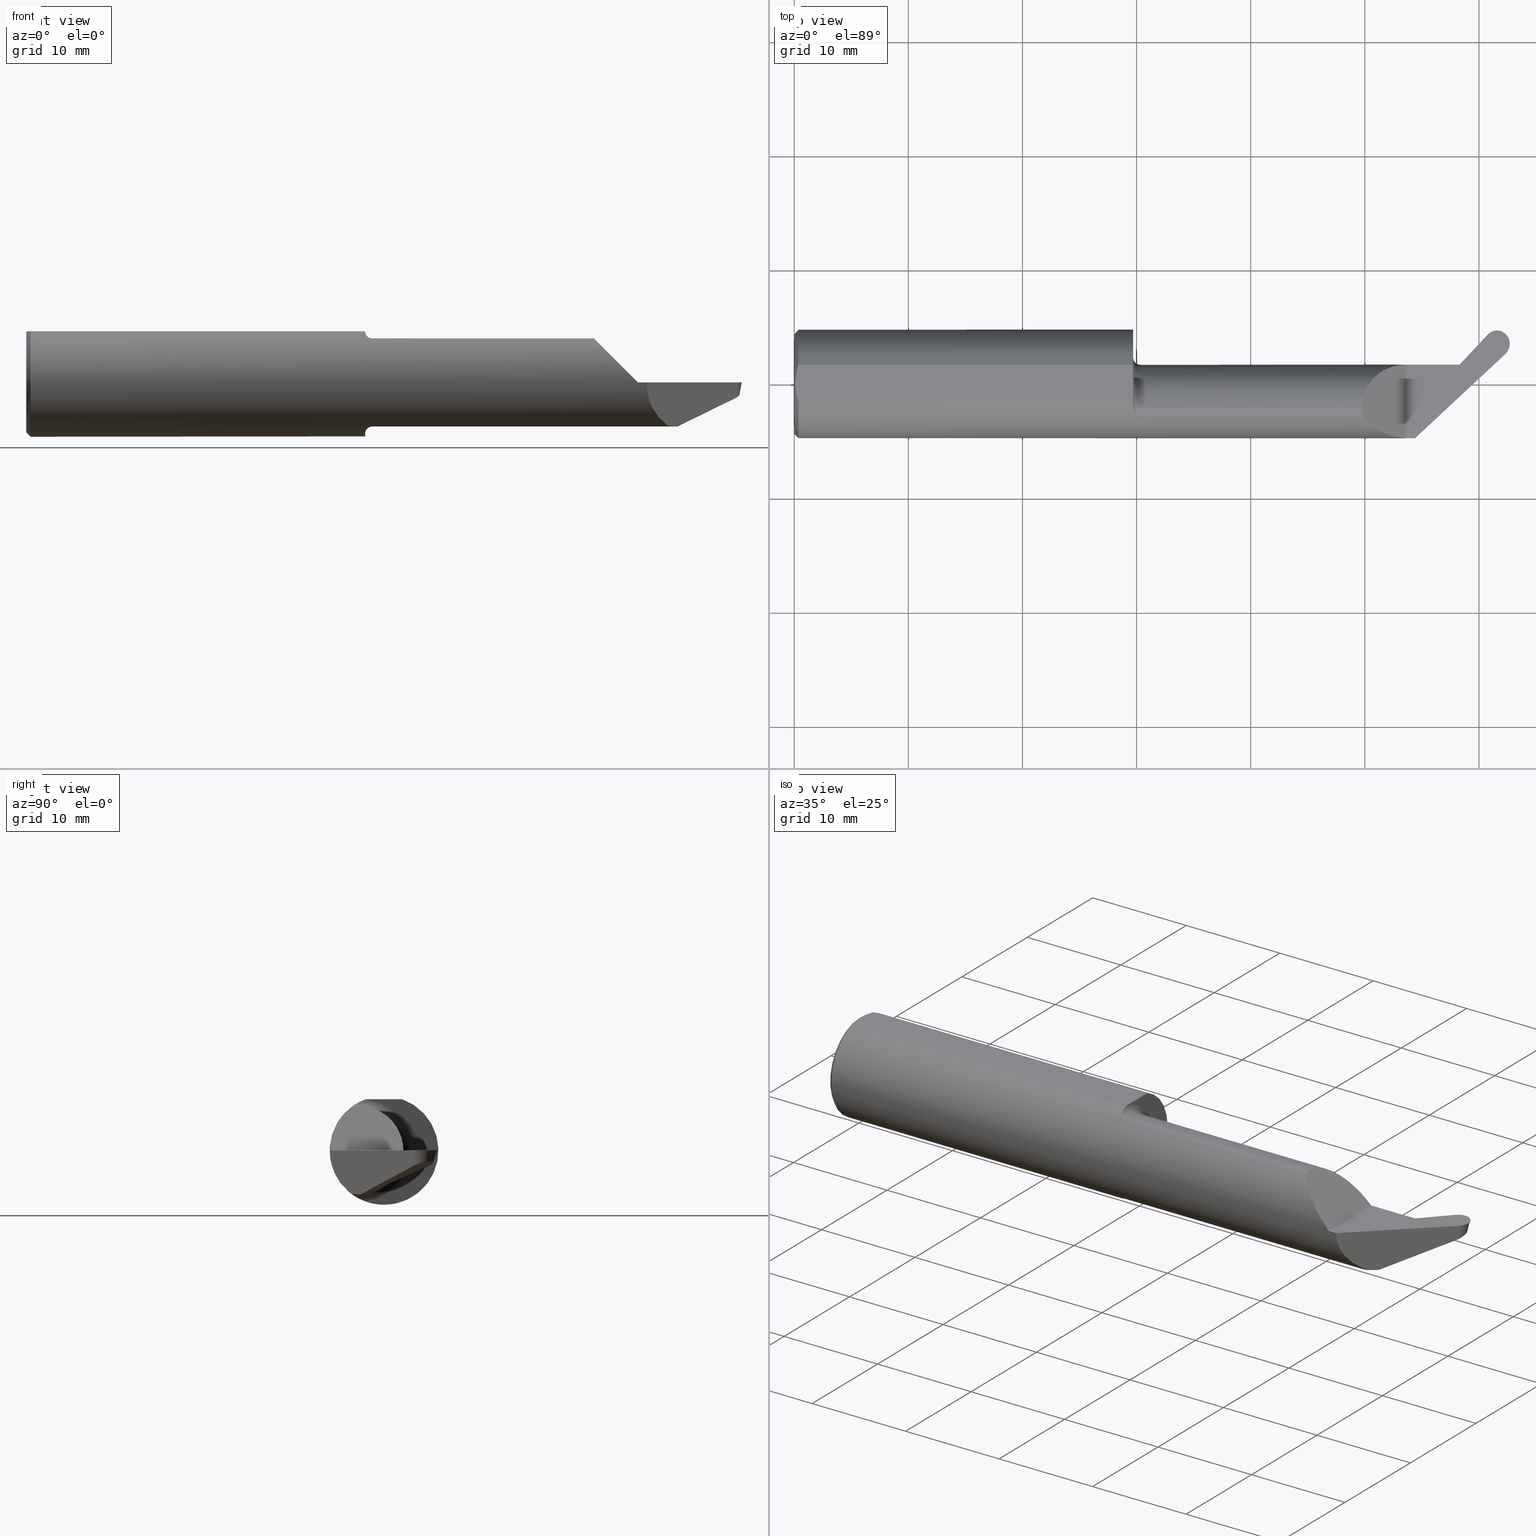
[diagram: canonical four-view strip — front | top / right | iso, engineering-drawing reading convention]
A machine part, canonical four-view strip (front | top / right | iso — engineering-drawing reading convention). The complete STEP part file that produces these views, byte-faithful:
ISO-10303-21;
HEADER;
FILE_DESCRIPTION (( 'STEP AP203' ),
    '1' );
FILE_NAME ('UP37093-20.STEP',
    '2025-06-18T18:21:30',
    ( '' ),
    ( '' ),
    'SwSTEP 2.0',
    'SolidWorks 2024',
    '' );
FILE_SCHEMA (( 'CONFIG_CONTROL_DESIGN' ));
ENDSEC;

DATA;
#1 = CARTESIAN_POINT ( 'NONE',  ( 0.004000000000000662748, 2.159664630158893524E-17, 0.1763499999999999512 ) ) ;
#2 = FACE_OUTER_BOUND ( 'NONE', #294, .T. ) ;
#3 = ORIENTED_EDGE ( 'NONE', *, *, #473, .T. ) ;
#4 = CARTESIAN_POINT ( 'NONE',  ( 2.518062565469962877, 0.1645519771454294622, -0.01970508489197681651 ) ) ;
#5 = DIRECTION ( 'NONE',  ( 0.000000000000000000, 0.000000000000000000, 1.000000000000000000 ) ) ;
#6 = EDGE_LOOP ( 'NONE', ( #199, #384, #219, #587 ) ) ;
#7 = CARTESIAN_POINT ( 'NONE',  ( 2.243301529027789787, -0.08534999999999996756, -0.1519999999999996632 ) ) ;
#8 = DIRECTION ( 'NONE',  ( 0.000000000000000000, 0.000000000000000000, -1.000000000000000000 ) ) ;
#9 = LOCAL_TIME ( 11, 21, 30.00000000000000000, #151 ) ;
#10 = AXIS2_PLACEMENT_3D ( 'NONE', #759, #772, #8 ) ;
#11 = ORIENTED_EDGE ( 'NONE', *, *, #581, .T. ) ;
#12 = ADVANCED_FACE ( 'NONE', ( #478 ), #551, .F. ) ;
#13 = CARTESIAN_POINT ( 'NONE',  ( 1.174689989136573631, -0.09739335834436128880, -0.1601651199371055545 ) ) ;
#14 = CARTESIAN_POINT ( 'NONE',  ( 2.281153022474290637, 0.04185901539785325670, -0.08336139160682329297 ) ) ;
#15 = VERTEX_POINT ( 'NONE', #677 ) ;
#16 = EDGE_CURVE ( 'NONE', #322, #15, #734, .T. ) ;
#17 = CARTESIAN_POINT ( 'NONE',  ( 2.459077965158949386, 0.1433853731627449113, -0.03979594805116976053 ) ) ;
#18 = ORIENTED_EDGE ( 'NONE', *, *, #479, .T. ) ;
#19 = CARTESIAN_POINT ( 'NONE',  ( 1.169000000000000039, -0.06325108694718373226, 0.1763499999999999512 ) ) ;
#20 = PERSON_AND_ORGANIZATION_ROLE ( 'design_supplier' ) ;
#21 =( BOUNDED_CURVE ( )  B_SPLINE_CURVE ( 3, ( #444, #633, #374, #198 ),
 .UNSPECIFIED., .F., .F. ) 
 B_SPLINE_CURVE_WITH_KNOTS ( ( 4, 4 ),
 ( 2.699207237110223367, 2.767232025981898325 ),
 .UNSPECIFIED. ) 
 CURVE ( )  GEOMETRIC_REPRESENTATION_ITEM ( )  RATIONAL_B_SPLINE_CURVE ( ( 1.000000000000000000, 0.9996144228480821070, 0.9996144228480821070, 1.000000000000000000 ) ) 
 REPRESENTATION_ITEM ( '' )  );
#22 = DIRECTION ( 'NONE',  ( -0.000000000000000000, 0.000000000000000000, -1.000000000000000000 ) ) ;
#23 = EDGE_LOOP ( 'NONE', ( #28, #696, #638, #691, #375, #564, #50, #592, #242, #554, #303, #196, #348, #653, #422 ) ) ;
#24 = AXIS2_PLACEMENT_3D ( 'NONE', #54, #490, #309 ) ;
#25 = FACE_OUTER_BOUND ( 'NONE', #516, .T. ) ;
#26 = PERSON_AND_ORGANIZATION_ROLE ( 'design_owner' ) ;
#27 = DIRECTION ( 'NONE',  ( -1.000000000000000000, 0.000000000000000000, 0.000000000000000000 ) ) ;
#28 = ORIENTED_EDGE ( 'NONE', *, *, #600, .F. ) ;
#29 = APPROVAL ( #212, 'UNSPECIFIED' ) ;
#30 = DATE_TIME_ROLE ( 'creation_date' ) ;
#31 = CARTESIAN_POINT ( 'NONE',  ( 2.454283556372039765, 0.1039272440970056555, 0.004376380827274202294 ) ) ;
#32 = CARTESIAN_POINT ( 'NONE',  ( 2.441160638786081805, 0.1661059047703549174, -0.03855976719346092263 ) ) ;
#33 = ORIENTED_EDGE ( 'NONE', *, *, #314, .F. ) ;
#34 = CARTESIAN_POINT ( 'NONE',  ( 2.451182245700235907, 0.1021114557563832931, -0.01816336498588111761 ) ) ;
#35 = PERSON_AND_ORGANIZATION_ROLE ( 'creator' ) ;
#36 = CARTESIAN_POINT ( 'NONE',  ( 2.446089945674899457, 0.09912996180384450740, -0.05517324897447399568 ) ) ;
#37 = CARTESIAN_POINT ( 'NONE',  ( 2.450952134155822026, 0.1584539500625258279, -0.03800912255487390312 ) ) ;
#38 = ORIENTED_EDGE ( 'NONE', *, *, #657, .F. ) ;
#39 = CARTESIAN_POINT ( 'NONE',  ( 3.706716638127685481, 1.320402553637411991, -0.6607321790986953047 ) ) ;
#40 = AXIS2_PLACEMENT_3D ( 'NONE', #39, #419, #540 ) ;
#41 = LINE ( 'NONE', #174, #561 ) ;
#42 = CARTESIAN_POINT ( 'NONE',  ( 1.169680673000416116, -0.07878962450278861884, -0.1701367906434538557 ) ) ;
#43 = ORIENTED_EDGE ( 'NONE', *, *, #143, .F. ) ;
#44 = CARTESIAN_POINT ( 'NONE',  ( 2.448742284664475299, 0.1006828814311472309, -0.03589654536016441411 ) ) ;
#45 = CARTESIAN_POINT ( 'NONE',  ( 0.01500000000000079568, 2.294375778202566330E-17, 0.1873499999999999888 ) ) ;
#46 = EDGE_CURVE ( 'NONE', #123, #312, #344, .T. ) ;
#47 = ORIENTED_EDGE ( 'NONE', *, *, #120, .F. ) ;
#48 = PLANE ( 'NONE',  #453 ) ;
#49 = CARTESIAN_POINT ( 'NONE',  ( 1.958844637866757887, -0.1038401262696877214, 0.1511553621332437647 ) ) ;
#50 = ORIENTED_EDGE ( 'NONE', *, *, #563, .F. ) ;
#51 = LOCAL_TIME ( 11, 21, 30.00000000000000000, #727 ) ;
#52 = CIRCLE ( 'NONE', #352, 0.1519999999999993856 ) ;
#53 = FACE_OUTER_BOUND ( 'NONE', #23, .T. ) ;
#54 = CARTESIAN_POINT ( 'NONE',  ( 0.01500000000000079568, 0.000000000000000000, 0.000000000000000000 ) ) ;
#55 = CARTESIAN_POINT ( 'NONE',  ( 2.295498185246933165, -0.08534999999999998144, 0.000000000000000000 ) ) ;
#56 = FACE_OUTER_BOUND ( 'NONE', #406, .T. ) ;
#57 = PRODUCT_RELATED_PRODUCT_CATEGORY ( 'detail', '', ( #812 ) ) ;
#58 = CARTESIAN_POINT ( 'NONE',  ( 0.01500000000000016251, -0.06325108694718371838, 0.1763499999999999512 ) ) ;
#59 = DIRECTION ( 'NONE',  ( 0.000000000000000000, 0.000000000000000000, 1.000000000000000000 ) ) ;
#60 = CIRCLE ( 'NONE', #810, 0.1873499999999999888 ) ;
#61 = ORGANIZATION ( 'UNSPECIFIED', 'UNSPECIFIED', '' ) ;
#62 = FACE_OUTER_BOUND ( 'NONE', #774, .T. ) ;
#63 = ORIENTED_EDGE ( 'NONE', *, *, #283, .T. ) ;
#64 = CARTESIAN_POINT ( 'NONE',  ( 1.169000000000000039, 0.1000000000000000056, 0.1763499999999999512 ) ) ;
#65 = ORIENTED_EDGE ( 'NONE', *, *, #754, .T. ) ;
#66 = DIRECTION ( 'NONE',  ( -0.6815829050885316986, 0.7309081807046564627, 0.03489949670248779223 ) ) ;
#67 = CARTESIAN_POINT ( 'NONE',  ( 2.281983674875784907, 0.06138847945356149666, -0.03999301210648574523 ) ) ;
#68 = EDGE_CURVE ( 'NONE', #210, #160, #488, .T. ) ;
#69 = ORIENTED_EDGE ( 'NONE', *, *, #682, .T. ) ;
#70 = CARTESIAN_POINT ( 'NONE',  ( 2.467767019416892360, 0.1514603896167064090, -4.745349621061710396E-17 ) ) ;
#71 = EDGE_CURVE ( 'NONE', #81, #769, #550, .T. ) ;
#72 = CARTESIAN_POINT ( 'NONE',  ( 2.290939857652344536, 0.06665000000000055602, -0.009735860034129286897 ) ) ;
#73 = ORIENTED_EDGE ( 'NONE', *, *, #553, .T. ) ;
#74 = CARTESIAN_POINT ( 'NONE',  ( 2.431132501251490829, 0.1845805313186274499, -4.745349621061712245E-17 ) ) ;
#75 = EDGE_CURVE ( 'NONE', #631, #769, #820, .T. ) ;
#76 = CARTESIAN_POINT ( 'NONE',  ( 0.01500000000000079568, 0.000000000000000000, -0.1873499999999999888 ) ) ;
#77 = ORIENTED_EDGE ( 'NONE', *, *, #600, .T. ) ;
#78 = LINE ( 'NONE', #332, #88 ) ;
#79 = DATE_AND_TIME ( #721, #51 ) ;
#80 = CARTESIAN_POINT ( 'NONE',  ( 2.458913355377315924, 0.1156647128602975722, -0.04697266347458025487 ) ) ;
#81 = VERTEX_POINT ( 'NONE', #182 ) ;
#82 = CARTESIAN_POINT ( 'NONE',  ( 1.193999999999999950, -0.1129504686584655859, -0.1494731217638571585 ) ) ;
#83 = DATE_AND_TIME ( #790, #752 ) ;
#84 = ADVANCED_FACE ( 'NONE', ( #753 ), #105, .T. ) ;
#85 = PRODUCT_DEFINITION ( 'UNKNOWN', '', #307, #822 ) ;
#86 = CARTESIAN_POINT ( 'NONE',  ( 2.141702867418015188, -0.1873500000000000165, -1.767807840146319986E-17 ) ) ;
#87 = ORIENTED_EDGE ( 'NONE', *, *, #393, .T. ) ;
#88 = VECTOR ( 'NONE', #204, 39.37007874015748143 ) ;
#89 = DIRECTION ( 'NONE',  ( 0.000000000000000000, 0.000000000000000000, 1.000000000000000000 ) ) ;
#90 = DATE_AND_TIME ( #145, #9 ) ;
#91 =( NAMED_UNIT ( * ) SI_UNIT ( $, .STERADIAN. ) SOLID_ANGLE_UNIT ( ) );
#92 = DIRECTION ( 'NONE',  ( -1.000000000000000000, -0.000000000000000000, -0.000000000000000000 ) ) ;
#93 = ORIENTED_EDGE ( 'NONE', *, *, #777, .T. ) ;
#94 = CARTESIAN_POINT ( 'NONE',  ( 2.390781059571785772, 0.1769529364069879207, 0.02067906550110955310 ) ) ;
#95 = CARTESIAN_POINT ( 'NONE',  ( 1.169000000000000039, 0.000000000000000000, 0.000000000000000000 ) ) ;
#96 = EDGE_CURVE ( 'NONE', #160, #256, #695, .T. ) ;
#97 = ORIENTED_EDGE ( 'NONE', *, *, #504, .F. ) ;
#98 = CARTESIAN_POINT ( 'NONE',  ( 2.448683094284190620, 0.1006482260180835281, -0.03632672997176230462 ) ) ;
#99 = COORDINATED_UNIVERSAL_TIME_OFFSET ( 8, 0, .BEHIND. ) ;
#100 = CARTESIAN_POINT ( 'NONE',  ( 2.499177077981944883, 0.1492702555647323348, -0.06848773989716420985 ) ) ;
#101 = DIRECTION ( 'NONE',  ( 0.000000000000000000, 0.000000000000000000, 1.000000000000000000 ) ) ;
#102 = ADVANCED_FACE ( 'NONE', ( #56 ), #429, .F. ) ;
#103 = VERTEX_POINT ( 'NONE', #620 ) ;
#104 = CARTESIAN_POINT ( 'NONE',  ( 1.193999999999999950, -0.08534999999999998144, 0.000000000000000000 ) ) ;
#105 = CONICAL_SURFACE ( 'NONE', #173, 0.1519999999999999407, 0.8203047484373092724 ) ;
#106 = AXIS2_PLACEMENT_3D ( 'NONE', #646, #265, #451 ) ;
#107 = ADVANCED_FACE ( 'NONE', ( #249 ), #519, .T. ) ;
#108 = B_SPLINE_CURVE_WITH_KNOTS ( 'NONE', 3,
 ( #716, #648, #148, #207, #590, #330, #347, #793, #282, #32, #594, #399, #288, #37, #395, #224, #521, #159, #454, #17, #526, #293, #80, #718, #536 ),
 .UNSPECIFIED., .F., .F.,
 ( 4, 1, 1, 2, 2, 2, 1, 2, 2, 1, 1, 2, 2, 2, 4 ),
 ( 0.000000000000000000, 0.1250000000000182909, 0.1875000000000246470, 0.2187500000000250633, 0.2500000000000254796, 0.3750000000000157652, 0.4375000000000108247, 0.4687500000000081601, 0.5000000000000054401, 0.5625000000000039968, 0.5937500000000021094, 0.6093750000000019984, 0.6250000000000019984, 0.7500000000000015543, 1.000000000000000000 ),
 .UNSPECIFIED. ) ;
#109 = CYLINDRICAL_SURFACE ( 'NONE', #683, 2.000000000000000444 ) ;
#110 =( BOUNDED_CURVE ( )  B_SPLINE_CURVE ( 3, ( #467, #798, #337, #725 ),
 .UNSPECIFIED., .F., .T. ) 
 B_SPLINE_CURVE_WITH_KNOTS ( ( 4, 4 ),
 ( 6.059119909605529486, 6.741373007566775044 ),
 .UNSPECIFIED. ) 
 CURVE ( )  GEOMETRIC_REPRESENTATION_ITEM ( )  RATIONAL_B_SPLINE_CURVE ( ( 1.000000000000000000, 0.9615855852221717459, 0.9615855852221717459, 1.000000000000000000 ) ) 
 REPRESENTATION_ITEM ( '' )  );
#111 = CARTESIAN_POINT ( 'NONE',  ( 1.169000000000000039, -0.08534999999999996756, -0.1519999999999996632 ) ) ;
#112 = CARTESIAN_POINT ( 'NONE',  ( 2.502431700342849563, 0.1519038244783046110, -0.06008080203593166996 ) ) ;
#113 = CARTESIAN_POINT ( 'NONE',  ( 2.243301529027789787, -0.08534999999999996756, -0.1519999999999996632 ) ) ;
#114 = DIRECTION ( 'NONE',  ( 1.000000000000000000, 0.000000000000000000, 0.000000000000000000 ) ) ;
#115 = EDGE_LOOP ( 'NONE', ( #634, #645, #231, #450, #43, #380 ) ) ;
#116 = CARTESIAN_POINT ( 'NONE',  ( 2.392933588621083629, 0.1679862007088440967, -0.008018759857224513898 ) ) ;
#117 = APPROVAL_PERSON_ORGANIZATION ( #216, #730, #517 ) ;
#118 = CARTESIAN_POINT ( 'NONE',  ( 0.000000000000000000, 0.000000000000000000, -0.1723499999999993371 ) ) ;
#119 = DIRECTION ( 'NONE',  ( 1.000000000000000000, 0.000000000000000000, 0.000000000000000000 ) ) ;
#120 = EDGE_CURVE ( 'NONE', #531, #486, #738, .T. ) ;
#121 = ORIENTED_EDGE ( 'NONE', *, *, #181, .T. ) ;
#122 = DIRECTION ( 'NONE',  ( 1.000000000000000000, -0.000000000000000000, -0.000000000000000000 ) ) ;
#123 = VERTEX_POINT ( 'NONE', #512 ) ;
#124 = CARTESIAN_POINT ( 'NONE',  ( 2.453579179962795287, 0.2225433100511390316, -0.03468619836903224368 ) ) ;
#125 = AXIS2_PLACEMENT_3D ( 'NONE', #781, #92, #644 ) ;
#126 = CARTESIAN_POINT ( 'NONE',  ( 1.169000000000000039, -0.08534999999999998144, 0.1519999999999996632 ) ) ;
#127 = ORIENTED_EDGE ( 'NONE', *, *, #714, .T. ) ;
#128 = CARTESIAN_POINT ( 'NONE',  ( 2.521196714732575117, 0.1670880618745503032, -0.01160933823453453966 ) ) ;
#129 = DIRECTION ( 'NONE',  ( -1.000000000000000000, -0.000000000000000000, -0.000000000000000000 ) ) ;
#130 = EDGE_CURVE ( 'NONE', #165, #743, #21, .T. ) ;
#131 = LINE ( 'NONE', #768, #670 ) ;
#132 = ORIENTED_EDGE ( 'NONE', *, *, #75, .T. ) ;
#133 = CARTESIAN_POINT ( 'NONE',  ( 2.448246970082820440, 0.1779498025175149378, -4.745349621061711013E-17 ) ) ;
#134 = EDGE_CURVE ( 'NONE', #614, #268, #483, .T. ) ;
#135 = CARTESIAN_POINT ( 'NONE',  ( 2.280379455643573916, 0.05827565579094853843, -0.05003292284399117607 ) ) ;
#136 = EDGE_LOOP ( 'NONE', ( #225, #33, #766, #577 ) ) ;
#137 = FACE_OUTER_BOUND ( 'NONE', #703, .T. ) ;
#138 = CARTESIAN_POINT ( 'NONE',  ( 2.345198632753220824, 0.02030358291259357767, -0.2536181806993441090 ) ) ;
#139 = AXIS2_PLACEMENT_3D ( 'NONE', #484, #114, #371 ) ;
#140 = AXIS2_PLACEMENT_3D ( 'NONE', #104, #674, #89 ) ;
#141 = EDGE_LOOP ( 'NONE', ( #290, #272 ) ) ;
#142 = B_SPLINE_CURVE_WITH_KNOTS ( 'NONE', 3,
 ( #363, #615, #248, #308 ),
 .UNSPECIFIED., .F., .F.,
 ( 4, 4 ),
 ( 0.003872958501701102233, 0.005496776235116782039 ),
 .UNSPECIFIED. ) ;
#143 = EDGE_CURVE ( 'NONE', #15, #474, #502, .T. ) ;
#144 = CARTESIAN_POINT ( 'NONE',  ( 1.181832178970063651, -0.1076014420774740743, -0.1533875229558556152 ) ) ;
#145 = CALENDAR_DATE ( 2025, 18, 6 ) ;
#146 = EDGE_LOOP ( 'NONE', ( #396, #189, #77, #432 ) ) ;
#147 = CARTESIAN_POINT ( 'NONE',  ( 2.468948145148677664, 0.1423966646996534247, -4.745349621061712245E-17 ) ) ;
#148 = CARTESIAN_POINT ( 'NONE',  ( 2.405759549798535790, 0.1637835564031271118, -0.04826849061165796456 ) ) ;
#149 = VERTEX_POINT ( 'NONE', #497 ) ;
#150 = CARTESIAN_POINT ( 'NONE',  ( 2.213833035312448683, -0.1129504686584656831, -0.1494731217638574639 ) ) ;
#151 = COORDINATED_UNIVERSAL_TIME_OFFSET ( 8, 0, .BEHIND. ) ;
#152 = CARTESIAN_POINT ( 'NONE',  ( 2.153755892153986995, -0.08534999999998654774, -5.276392632299698409E-15 ) ) ;
#153 = ORIENTED_EDGE ( 'NONE', *, *, #563, .T. ) ;
#154 = CIRCLE ( 'NONE', #140, 0.1519999999999993856 ) ;
#155 = AXIS2_PLACEMENT_3D ( 'NONE', #787, #22, #27 ) ;
#156 = CARTESIAN_POINT ( 'NONE',  ( 2.169027510930384040, -0.1618693577013822493, 0.000000000000000000 ) ) ;
#157 = CARTESIAN_POINT ( 'NONE',  ( 0.01500000000000079568, 0.000000000000000000, 0.000000000000000000 ) ) ;
#158 = EDGE_CURVE ( 'NONE', #788, #614, #693, .T. ) ;
#159 = CARTESIAN_POINT ( 'NONE',  ( 2.458440229617198547, 0.1454688047867808420, -0.03942387529232573018 ) ) ;
#160 = VERTEX_POINT ( 'NONE', #58 ) ;
#161 = DIRECTION ( 'NONE',  ( 0.000000000000000000, 0.000000000000000000, -1.000000000000000000 ) ) ;
#162 = LENGTH_MEASURE_WITH_UNIT ( LENGTH_MEASURE( 0.02539999999999999897 ), #546 );
#163 = LINE ( 'NONE', #230, #439 ) ;
#164 = APPLICATION_CONTEXT ( 'configuration controlled 3d designs of mechanical parts and assemblies' ) ;
#165 = VERTEX_POINT ( 'NONE', #263 ) ;
#166 = EDGE_CURVE ( 'NONE', #782, #312, #559, .T. ) ;
#167 = DIRECTION ( 'NONE',  ( -1.000000000000000000, -0.000000000000000000, -0.000000000000000000 ) ) ;
#168 = DIRECTION ( 'NONE',  ( -0.000000000000000000, 0.000000000000000000, -1.000000000000000000 ) ) ;
#169 = CARTESIAN_POINT ( 'NONE',  ( 1.958000000000002405, -0.08534999999999998144, 0.1519999999999996632 ) ) ;
#170 = DIRECTION ( 'NONE',  ( -1.000000000000000000, -0.000000000000000000, -0.000000000000000000 ) ) ;
#171 = CC_DESIGN_PERSON_AND_ORGANIZATION_ASSIGNMENT ( #710, #20, ( #307 ) ) ;
#172 = DIRECTION ( 'NONE',  ( -1.000000000000000000, -0.000000000000000000, -0.000000000000000000 ) ) ;
#173 = AXIS2_PLACEMENT_3D ( 'NONE', #618, #119, #238 ) ;
#174 = CARTESIAN_POINT ( 'NONE',  ( 2.423946661898040755, 0.07897008013997777742, -0.06541583951153338850 ) ) ;
#175 = CARTESIAN_POINT ( 'NONE',  ( 2.453681397116281193, 0.1035746854946824336, 0.000000000000000000 ) ) ;
#176 = DIRECTION ( 'NONE',  ( -0.000000000000000000, 1.000000000000000000, 1.224646799147353207E-16 ) ) ;
#177 = DIRECTION ( 'NONE',  ( 0.000000000000000000, 0.000000000000000000, 1.000000000000000000 ) ) ;
#178 = CARTESIAN_POINT ( 'NONE',  ( 2.394994969483459357, 0.1593991587029116863, -0.03550138454127874099 ) ) ;
#179 = CARTESIAN_POINT ( 'NONE',  ( 2.457956336274219389, 0.2382619572343544767, -0.006625497524191906185 ) ) ;
#180 = CARTESIAN_POINT ( 'NONE',  ( 1.169000000000000039, -0.06476652021089757127, -0.1757990908957477727 ) ) ;
#181 = EDGE_CURVE ( 'NONE', #623, #149, #131, .T. ) ;
#182 = CARTESIAN_POINT ( 'NONE',  ( 1.171184626225752590, -0.08534999999999996756, -0.1667794951425384531 ) ) ;
#183 =( GEOMETRIC_REPRESENTATION_CONTEXT ( 3 ) GLOBAL_UNCERTAINTY_ASSIGNED_CONTEXT ( ( #751 ) ) GLOBAL_UNIT_ASSIGNED_CONTEXT ( ( #535, #346, #91 ) ) REPRESENTATION_CONTEXT ( 'NONE', 'WORKASPACE' ) );
#184 = B_SPLINE_CURVE_WITH_KNOTS ( 'NONE', 3,
 ( #702, #72, #258, #195, #67, #135, #386, #640, #327, #573, #14, #267, #271, #530 ),
 .UNSPECIFIED., .F., .F.,
 ( 4, 2, 2, 2, 2, 2, 4 ),
 ( 1.537583197619406025E-16, 0.0008101701905474081779, 0.001215255285821032578, 0.001620340381094657195, 0.002025425476368282029, 0.002430510571641906863, 0.003240680762189150892 ),
 .UNSPECIFIED. ) ;
#185 = CARTESIAN_POINT ( 'NONE',  ( 1.193999999999999950, -0.1129504686584655859, -0.1494731217638571585 ) ) ;
#186 = ORIENTED_EDGE ( 'NONE', *, *, #449, .T. ) ;
#187 = DIRECTION ( 'NONE',  ( 1.000000000000000000, 0.000000000000000000, 0.000000000000000000 ) ) ;
#188 = FACE_OUTER_BOUND ( 'NONE', #215, .T. ) ;
#189 = ORIENTED_EDGE ( 'NONE', *, *, #473, .F. ) ;
#190 = DIRECTION ( 'NONE',  ( -1.000000000000000000, -0.000000000000000000, -0.000000000000000000 ) ) ;
#191 = ORIENTED_EDGE ( 'NONE', *, *, #771, .T. ) ;
#192 = CARTESIAN_POINT ( 'NONE',  ( 2.448665127089153959, 0.2048966331070203595, -0.06618878996360204325 ) ) ;
#193 = AXIS2_PLACEMENT_3D ( 'NONE', #342, #233, #732 ) ;
#194 = AXIS2_PLACEMENT_3D ( 'NONE', #372, #176, #685 ) ;
#195 = CARTESIAN_POINT ( 'NONE',  ( 2.283095476919918987, 0.06268864236261695311, -0.03486095946414635022 ) ) ;
#196 = ORIENTED_EDGE ( 'NONE', *, *, #509, .T. ) ;
#197 = CARTESIAN_POINT ( 'NONE',  ( 2.546610177810151310, 0.2020557698480204278, -0.2476242554592702205 ) ) ;
#198 = CARTESIAN_POINT ( 'NONE',  ( 2.295498185246933165, 0.02599910668799065849, -0.1034667890668074935 ) ) ;
#199 = ORIENTED_EDGE ( 'NONE', *, *, #390, .F. ) ;
#200 = ADVANCED_FACE ( 'NONE', ( #62 ), #383, .F. ) ;
#201 = CARTESIAN_POINT ( 'NONE',  ( 2.297704186898655632, 0.01986079521081618796, -0.1131190473422113291 ) ) ;
#202 = APPLICATION_CONTEXT ( 'configuration controlled 3d designs of mechanical parts and assemblies' ) ;
#203 = ORIENTED_EDGE ( 'NONE', *, *, #689, .F. ) ;
#204 = DIRECTION ( 'NONE',  ( -1.000000000000000000, -0.000000000000000000, -0.000000000000000000 ) ) ;
#205 = PERSON_AND_ORGANIZATION_ROLE ( 'creator' ) ;
#206 = AXIS2_PLACEMENT_3D ( 'NONE', #813, #362, #803 ) ;
#207 = CARTESIAN_POINT ( 'NONE',  ( 2.413833654575487042, 0.1674156303476084795, -0.04525572031658859490 ) ) ;
#208 = VECTOR ( 'NONE', #569, 39.37007874015748143 ) ;
#209 = AXIS2_PLACEMENT_3D ( 'NONE', #662, #168, #462 ) ;
#210 = VERTEX_POINT ( 'NONE', #1 ) ;
#211 = CARTESIAN_POINT ( 'NONE',  ( 1.190394666912732768, -0.1129504686584661688, -0.1494731217638570753 ) ) ;
#212 = APPROVAL_STATUS ( 'not_yet_approved' ) ;
#213 = B_SPLINE_CURVE_WITH_KNOTS ( 'NONE', 3,
 ( #572, #578, #770, #336 ),
 .UNSPECIFIED., .F., .F.,
 ( 4, 4 ),
 ( 4.102419206629668344E-05, 0.0006141256517407879447 ),
 .UNSPECIFIED. ) ;
#214 = LINE ( 'NONE', #218, #601 ) ;
#215 = EDGE_LOOP ( 'NONE', ( #334, #132, #203, #434, #665, #610, #760, #596, #87, #538 ) ) ;
#216 = PERSON_AND_ORGANIZATION ( #335, #61 ) ;
#217 = FACE_OUTER_BOUND ( 'NONE', #115, .T. ) ;
#218 = CARTESIAN_POINT ( 'NONE',  ( 2.153755892154001650, -0.08534999999999998144, -4.745349621061712245E-17 ) ) ;
#219 = ORIENTED_EDGE ( 'NONE', *, *, #143, .T. ) ;
#220 = CARTESIAN_POINT ( 'NONE',  ( 0.000000000000000000, 0.000000000000000000, 0.000000000000000000 ) ) ;
#221 = EDGE_CURVE ( 'NONE', #425, #103, #763, .T. ) ;
#222 = PERSON_AND_ORGANIZATION ( #335, #61 ) ;
#223 = CARTESIAN_POINT ( 'NONE',  ( 2.445098454297749857, 0.09854945289230067351, -0.06237922282941021912 ) ) ;
#224 = CARTESIAN_POINT ( 'NONE',  ( 2.455809323501967345, 0.1518888668668897102, -0.03844867605728689852 ) ) ;
#225 = ORIENTED_EDGE ( 'NONE', *, *, #714, .F. ) ;
#226 = CC_DESIGN_APPROVAL ( #730, ( #642 ) ) ;
#227 = ADVANCED_FACE ( 'NONE', ( #188 ), #379, .T. ) ;
#228 = B_SPLINE_CURVE_WITH_KNOTS ( 'NONE', 3,
 ( #733, #42, #305, #741 ),
 .UNSPECIFIED., .F., .F.,
 ( 4, 4 ),
 ( 0.001081723733566378361, 0.001661700673542926190 ),
 .UNSPECIFIED. ) ;
#229 = PERSON_AND_ORGANIZATION ( #335, #61 ) ;
#230 = CARTESIAN_POINT ( 'NONE',  ( 1.169000000000000039, 0.06664999999999968172, -4.745349621061712245E-17 ) ) ;
#231 = ORIENTED_EDGE ( 'NONE', *, *, #313, .F. ) ;
#232 = CARTESIAN_POINT ( 'NONE',  ( 1.960526878236144244, -0.1129504686584656276, 0.1494731217638574639 ) ) ;
#233 = DIRECTION ( 'NONE',  ( -1.000000000000000000, -0.000000000000000000, -0.000000000000000000 ) ) ;
#234 = DIRECTION ( 'NONE',  ( 0.000000000000000000, 0.000000000000000000, 1.000000000000000000 ) ) ;
#235 = ORIENTED_EDGE ( 'NONE', *, *, #479, .F. ) ;
#236 = CARTESIAN_POINT ( 'NONE',  ( 1.958000000000001961, 0.003689538519289367602, 0.1519999999999996632 ) ) ;
#237 = CARTESIAN_POINT ( 'NONE',  ( 1.958000000000002405, -0.08534999999999998144, 0.1519999999999996632 ) ) ;
#238 = DIRECTION ( 'NONE',  ( 0.000000000000000000, 0.000000000000000000, -1.000000000000000000 ) ) ;
#239 = VECTOR ( 'NONE', #318, 39.37007874015748143 ) ;
#240 = DIRECTION ( 'NONE',  ( -1.000000000000000000, -0.000000000000000000, -0.000000000000000000 ) ) ;
#241 = CARTESIAN_POINT ( 'NONE',  ( 2.393663548712664735, 0.1649454244586701923, -0.01775069227056258123 ) ) ;
#242 = ORIENTED_EDGE ( 'NONE', *, *, #748, .T. ) ;
#243 = CARTESIAN_POINT ( 'NONE',  ( 2.396274651618984564, 0.1540684192686122278, -0.05256228992169147129 ) ) ;
#244 = CARTESIAN_POINT ( 'NONE',  ( 1.172585190695228041, -0.09145938470227704675, 0.1636529957854460093 ) ) ;
#245 = CARTESIAN_POINT ( 'NONE',  ( 0.004000000000000660146, -0.02175731046388920675, 0.1763499999999999512 ) ) ;
#246 =( BOUNDED_CURVE ( )  B_SPLINE_CURVE ( 3, ( #7, #636, #269, #514 ),
 .UNSPECIFIED., .F., .T. ) 
 B_SPLINE_CURVE_WITH_KNOTS ( ( 4, 4 ),
 ( 1.523084436873743730, 1.550918134938522597 ),
 .UNSPECIFIED. ) 
 CURVE ( )  GEOMETRIC_REPRESENTATION_ITEM ( )  RATIONAL_B_SPLINE_CURVE ( ( 1.000000000000000000, 0.9999354414796474133, 0.9999354414796474133, 1.000000000000000000 ) ) 
 REPRESENTATION_ITEM ( '' )  );
#247 = CARTESIAN_POINT ( 'NONE',  ( 2.396672973421922315, 0.1524091402309536991, -0.05787277320650029144 ) ) ;
#248 = CARTESIAN_POINT ( 'NONE',  ( 0.004000000000000663615, 0.02174349820064852903, 0.1763499999999999512 ) ) ;
#249 = FACE_OUTER_BOUND ( 'NONE', #570, .T. ) ;
#250 = EDGE_CURVE ( 'NONE', #256, #345, #60, .T. ) ;
#251 = VECTOR ( 'NONE', #508, 39.37007874015748854 ) ;
#252 = DIRECTION ( 'NONE',  ( -1.000000000000000000, -0.000000000000000000, -0.000000000000000000 ) ) ;
#253 = ADVANCED_FACE ( 'NONE', ( #2 ), #255, .T. ) ;
#254 = CARTESIAN_POINT ( 'NONE',  ( 2.394840600753540549, 0.1600422086082013418, -0.03344331854047156993 ) ) ;
#255 = PLANE ( 'NONE',  #630 ) ;
#256 = VERTEX_POINT ( 'NONE', #566 ) ;
#257 = CARTESIAN_POINT ( 'NONE',  ( 2.516530478568176132, 0.1633122460827637346, -0.02366258224662923931 ) ) ;
#258 = CARTESIAN_POINT ( 'NONE',  ( 2.287202422033007831, 0.06572839334873606387, -0.01965257165043607715 ) ) ;
#259 = ORIENTED_EDGE ( 'NONE', *, *, #393, .F. ) ;
#260 = CARTESIAN_POINT ( 'NONE',  ( 2.302761862433048368, 0.03170526501447875484, -0.1087690128340068757 ) ) ;
#261 = CONICAL_SURFACE ( 'NONE', #537, 0.1873499999999999888, 0.7853981633974437271 ) ;
#262 = VECTOR ( 'NONE', #252, 39.37007874015748143 ) ;
#263 = CARTESIAN_POINT ( 'NONE',  ( 2.291385060332452817, 0.01870869955985383221, -0.1107961508623451774 ) ) ;
#264 = ORIENTED_EDGE ( 'NONE', *, *, #509, .F. ) ;
#265 = DIRECTION ( 'NONE',  ( -1.000000000000000000, -0.000000000000000000, -0.000000000000000000 ) ) ;
#266 = EDGE_CURVE ( 'NONE', #742, #165, #184, .T. ) ;
#267 = CARTESIAN_POINT ( 'NONE',  ( 2.284173398886063744, 0.03282998080076137554, -0.09615879041668785876 ) ) ;
#268 = VERTEX_POINT ( 'NONE', #658 ) ;
#269 = CARTESIAN_POINT ( 'NONE',  ( 2.246327081144900983, -0.08252956411674720882, -0.1519803738930390336 ) ) ;
#270 =( BOUNDED_SURFACE ( )  B_SPLINE_SURFACE ( 3, 3, ( 
 ( #660, #94, #532, #795, #815, #627, #498, #116, #376, #254, #558, #243, #316, #744, #247, #808 ),
 ( #179, #622, #758, #426, #755, #692, #423, #124, #678, #632, #192, #381, #761, #635, #437, #320 ),
 ( #697, #128, #565, #4, #257, #501, #667, #541, #599, #112, #100, #611, #801, #792, #292, #675 ),
 ( #728, #287, #724, #608, #31, #525, #589, #297, #472, #44, #529, #281, #36, #481, #476, #223 ) ),
 .UNSPECIFIED., .F., .F., .T. ) 
 B_SPLINE_SURFACE_WITH_KNOTS ( ( 4, 4 ),
 ( 4, 2, 2, 2, 2, 2, 2, 4 ),
 ( 0.000000000000000000, 1.000000000000000000 ),
 ( -0.1176397158806894716, 0.05391447285196413614, 0.3820364386451398087, 0.4513842117828956724, 1.046814737627526304, 1.743846404394903571, 1.769456360178500054, 1.941010548911153766 ),
 .UNSPECIFIED. ) 
 GEOMETRIC_REPRESENTATION_ITEM ( )  RATIONAL_B_SPLINE_SURFACE ( (
 ( 1.000000000000000000, 1.000000000000000000, 1.000000000000000000, 1.000000000000000000, 1.000000000000000000, 1.000000000000000000, 1.000000000000000000, 1.000000000000000000, 1.000000000000000000, 1.000000000000000000, 1.000000000000000000, 1.000000000000000000, 1.000000000000000000, 1.000000000000000000, 1.000000000000000000, 1.000000000000000000),
 ( 0.3426147761147487203, 0.3426147761147487203, 0.3426147761147386728, 0.3426147761147386728, 0.3426147761147432247, 0.3426147761147432247, 0.3426147761147454451, 0.3426147761147454451, 0.3426147761147454451, 0.3426147761147454451, 0.3426147761147457782, 0.3426147761147457782, 0.3426147761147511073, 0.3426147761147511073, 0.3426147761147436688, 0.3426147761147436688),
 ( 0.3426147761147487203, 0.3426147761147487203, 0.3426147761147386728, 0.3426147761147386728, 0.3426147761147432247, 0.3426147761147432247, 0.3426147761147454451, 0.3426147761147454451, 0.3426147761147454451, 0.3426147761147454451, 0.3426147761147457782, 0.3426147761147457782, 0.3426147761147511073, 0.3426147761147511073, 0.3426147761147436688, 0.3426147761147436688),
 ( 1.000000000000000000, 1.000000000000000000, 1.000000000000000000, 1.000000000000000000, 1.000000000000000000, 1.000000000000000000, 1.000000000000000000, 1.000000000000000000, 1.000000000000000000, 1.000000000000000000, 1.000000000000000000, 1.000000000000000000, 1.000000000000000000, 1.000000000000000000, 1.000000000000000000, 1.000000000000000000) ) ) 
 REPRESENTATION_ITEM ( '' )  SURFACE ( )  );
#271 = CARTESIAN_POINT ( 'NONE',  ( 2.287349474387792014, 0.02598289541875648326, -0.1039642947416341973 ) ) ;
#272 = ORIENTED_EDGE ( 'NONE', *, *, #266, .F. ) ;
#273 = CARTESIAN_POINT ( 'NONE',  ( 1.193999999999999950, -0.08534999999999996756, 0.000000000000000000 ) ) ;
#274 =( BOUNDED_CURVE ( )  B_SPLINE_CURVE ( 3, ( #507, #767, #442, #232 ),
 .UNSPECIFIED., .F., .T. ) 
 B_SPLINE_CURVE_WITH_KNOTS ( ( 4, 4 ),
 ( 4.712388980384689674, 5.636073291855361767 ),
 .UNSPECIFIED. ) 
 CURVE ( )  GEOMETRIC_REPRESENTATION_ITEM ( )  RATIONAL_B_SPLINE_CURVE ( ( 1.000000000000000000, 0.9301554373620524174, 0.9301554373620524174, 1.000000000000000000 ) ) 
 REPRESENTATION_ITEM ( '' )  );
#275 = DIRECTION ( 'NONE',  ( 1.000000000000000000, 0.000000000000000000, 0.000000000000000000 ) ) ;
#276 = VECTOR ( 'NONE', #306, 39.37007874015748143 ) ;
#277 = ADVANCED_FACE ( 'NONE', ( #576 ), #377, .F. ) ;
#278 = ORIENTED_EDGE ( 'NONE', *, *, #166, .F. ) ;
#279 = CARTESIAN_POINT ( 'NONE',  ( 1.193999999999999950, -0.1129504686584657108, 0.1494731217638571308 ) ) ;
#280 = APPROVAL_STATUS ( 'not_yet_approved' ) ;
#281 = CARTESIAN_POINT ( 'NONE',  ( 2.446136944271526836, 0.09915747904181738959, -0.05483167196603142002 ) ) ;
#282 = CARTESIAN_POINT ( 'NONE',  ( 2.433421563443157076, 0.1692167954269371277, -0.03975090374407392463 ) ) ;
#283 = EDGE_CURVE ( 'NONE', #445, #788, #723, .T. ) ;
#284 = ORIENTED_EDGE ( 'NONE', *, *, #120, .T. ) ;
#285 = CARTESIAN_POINT ( 'NONE',  ( 1.211045765043113231, 1.398395765043100702, -0.03799999999999999906 ) ) ;
#286 = DATE_AND_TIME ( #398, #722 ) ;
#287 = CARTESIAN_POINT ( 'NONE',  ( 2.456117536737197682, 0.1050010224173180406, 0.01770540704634223153 ) ) ;
#288 = CARTESIAN_POINT ( 'NONE',  ( 2.449943697460335024, 0.1595389727539629765, -0.03798941193716418724 ) ) ;
#289 = EDGE_CURVE ( 'NONE', #531, #256, #711, .T. ) ;
#290 = ORIENTED_EDGE ( 'NONE', *, *, #745, .F. ) ;
#291 = CARTESIAN_POINT ( 'NONE',  ( 2.138639136373742033, -0.1873500000000000720, -0.05983429283714602337 ) ) ;
#292 = CARTESIAN_POINT ( 'NONE',  ( 2.493961654603572775, 0.1450500495443142468, -0.08195957638225082054 ) ) ;
#293 = CARTESIAN_POINT ( 'NONE',  ( 2.460939935261273970, 0.1321708801232840125, -0.04220296779343399307 ) ) ;
#294 = EDGE_LOOP ( 'NONE', ( #63, #659, #604, #726 ) ) ;
#295 = CC_DESIGN_SECURITY_CLASSIFICATION ( #642, ( #307 ) ) ;
#296 = CARTESIAN_POINT ( 'NONE',  ( 2.247840851845028354, -0.08111982414012910980, -0.1519411254802152111 ) ) ;
#297 = CARTESIAN_POINT ( 'NONE',  ( 2.452206886833148580, 0.1027113735393146848, -0.01071646490693098884 ) ) ;
#298 = CARTESIAN_POINT ( 'NONE',  ( 1.193999999999999950, -0.1129504686584657108, 0.1494731217638571308 ) ) ;
#299 = EDGE_LOOP ( 'NONE', ( #574, #567, #97, #583, #680 ) ) ;
#300 = CARTESIAN_POINT ( 'NONE',  ( 1.193999999999999950, -0.08534999999999996756, -0.1519999999999993856 ) ) ;
#301 = DIRECTION ( 'NONE',  ( 1.000000000000000000, -0.000000000000000000, -0.000000000000000000 ) ) ;
#302 = LINE ( 'NONE', #424, #823 ) ;
#303 = ORIENTED_EDGE ( 'NONE', *, *, #250, .T. ) ;
#304 = CARTESIAN_POINT ( 'NONE',  ( 1.193999999999999950, -0.08534999999999996756, 0.1769999999999993801 ) ) ;
#305 = CARTESIAN_POINT ( 'NONE',  ( 1.169000000000000039, -0.07189143372580585056, -0.1731741862229593809 ) ) ;
#306 = DIRECTION ( 'NONE',  ( -1.000000000000000000, -0.000000000000000000, -0.000000000000000000 ) ) ;
#307 = PRODUCT_DEFINITION_FORMATION_WITH_SPECIFIED_SOURCE ( 'ANY', '', #812, .NOT_KNOWN. ) ;
#308 = CARTESIAN_POINT ( 'NONE',  ( 0.004000000000000662748, 2.159664630158893524E-17, 0.1763499999999999512 ) ) ;
#309 = DIRECTION ( 'NONE',  ( 0.000000000000000000, 0.000000000000000000, -1.000000000000000000 ) ) ;
#310 = EDGE_CURVE ( 'NONE', #743, #782, #333, .T. ) ;
#311 = CARTESIAN_POINT ( 'NONE',  ( 1.181794310168975626, -0.1075702432048001589, 0.1534098348099882103 ) ) ;
#312 = VERTEX_POINT ( 'NONE', #515 ) ;
#313 = EDGE_CURVE ( 'NONE', #742, #123, #214, .T. ) ;
#314 = EDGE_CURVE ( 'NONE', #312, #641, #108, .T. ) ;
#315 = DIRECTION ( 'NONE',  ( 0.000000000000000000, 0.000000000000000000, -1.000000000000000000 ) ) ;
#316 = CARTESIAN_POINT ( 'NONE',  ( 2.396300520936615719, 0.1539606561078911418, -0.05290718336681216050 ) ) ;
#317 = VECTOR ( 'NONE', #664, 39.37007874015748854 ) ;
#318 = DIRECTION ( 'NONE',  ( -0.000000000000000000, 1.000000000000000000, -0.000000000000000000 ) ) ;
#319 = EDGE_LOOP ( 'NONE', ( #259, #455, #740 ) ) ;
#320 = CARTESIAN_POINT ( 'NONE',  ( 2.446215587135848857, 0.1961001790744172080, -0.08189209205014037762 ) ) ;
#321 = CARTESIAN_POINT ( 'NONE',  ( 0.01500000000000079568, 0.000000000000000000, 0.000000000000000000 ) ) ;
#322 = VERTEX_POINT ( 'NONE', #86 ) ;
#323 = DIRECTION ( 'NONE',  ( 0.000000000000000000, 0.000000000000000000, -1.000000000000000000 ) ) ;
#324 = ORIENTED_EDGE ( 'NONE', *, *, #689, .T. ) ;
#325 = CARTESIAN_POINT ( 'NONE',  ( 2.392332127941882103, 0.1704916902143809587, -4.745349621061712245E-17 ) ) ;
#326 = AXIS2_PLACEMENT_3D ( 'NONE', #273, #129, #780 ) ;
#327 = CARTESIAN_POINT ( 'NONE',  ( 2.279583975438843169, 0.04989058623087156558, -0.06958800794744468554 ) ) ;
#328 = ORIENTED_EDGE ( 'NONE', *, *, #71, .T. ) ;
#329 = CARTESIAN_POINT ( 'NONE',  ( 1.172586893946101716, -0.09146681443154602853, -0.1636491935950594168 ) ) ;
#330 = CARTESIAN_POINT ( 'NONE',  ( 2.420070894503217662, 0.1689492613968661405, -0.04325576372926755869 ) ) ;
#331 = ORIENTED_EDGE ( 'NONE', *, *, #663, .F. ) ;
#332 = CARTESIAN_POINT ( 'NONE',  ( 1.744749092623466558, -0.1129504686584656831, -0.1494731217638574639 ) ) ;
#333 = LINE ( 'NONE', #152, #317 ) ;
#334 = ORIENTED_EDGE ( 'NONE', *, *, #591, .F. ) ;
#335 = PERSON ( 'UNSPECIFIED', 'UNSPECIFIED', 'UNSPECIFIED', ('UNSPECIFIED'), ('UNSPECIFIED'), ('UNSPECIFIED') ) ;
#336 = CARTESIAN_POINT ( 'NONE',  ( 1.171184626225752590, -0.08534999999999996756, 0.1667794951425384253 ) ) ;
#337 = CARTESIAN_POINT ( 'NONE',  ( 2.232931945081154890, -0.01299551991045560725, -0.1382453010322478304 ) ) ;
#338 = AXIS2_PLACEMENT_3D ( 'NONE', #433, #690, #5 ) ;
#339 = ORIENTED_EDGE ( 'NONE', *, *, #130, .F. ) ;
#340 = DIRECTION ( 'NONE',  ( 0.000000000000000000, 0.000000000000000000, 1.000000000000000000 ) ) ;
#341 = COORDINATED_UNIVERSAL_TIME_OFFSET ( 8, 0, .BEHIND. ) ;
#342 = CARTESIAN_POINT ( 'NONE',  ( 1.169000000000000039, -0.08534999999999998144, 0.000000000000000000 ) ) ;
#343 = DIRECTION ( 'NONE',  ( 0.7071067811865507924, 0.000000000000000000, -0.7071067811865443531 ) ) ;
#344 = B_SPLINE_CURVE_WITH_KNOTS ( 'NONE', 3,
 ( #417, #241, #178, #365 ),
 .UNSPECIFIED., .F., .F.,
 ( 4, 4 ),
 ( 0.000000000000000000, 1.000000000000000000 ),
 .UNSPECIFIED. ) ;
#345 = VERTEX_POINT ( 'NONE', #652 ) ;
#346 =( NAMED_UNIT ( * ) PLANE_ANGLE_UNIT ( ) SI_UNIT ( $, .RADIAN. ) );
#347 = CARTESIAN_POINT ( 'NONE',  ( 2.421302571898784617, 0.1691495839255429401, -0.04288721589337948087 ) ) ;
#348 = ORIENTED_EDGE ( 'NONE', *, *, #283, .F. ) ;
#349 = DIRECTION ( 'NONE',  ( -1.000000000000000000, -0.000000000000000000, -0.000000000000000000 ) ) ;
#350 = CLOSED_SHELL ( 'NONE', ( #555, #595, #814, #227, #427, #776, #84, #447, #628, #420, #387, #821, #12, #102, #107, #277, #253, #621, #200, #539 ) ) ;
#351 = CYLINDRICAL_SURFACE ( 'NONE', #779, 0.1519999999999996632 ) ;
#352 = AXIS2_PLACEMENT_3D ( 'NONE', #749, #413, #177 ) ;
#353 = ORIENTED_EDGE ( 'NONE', *, *, #748, .F. ) ;
#354 = AXIS2_PLACEMENT_3D ( 'NONE', #197, #66, #713 ) ;
#355 = DIRECTION ( 'NONE',  ( -0.7313537016191670181, -0.6819983600625021403, 0.000000000000000000 ) ) ;
#356 = DIRECTION ( 'NONE',  ( -0.6954206866754740757, -0.6321757989175352810, -0.3416779592054304260 ) ) ;
#357 = CARTESIAN_POINT ( 'NONE',  ( 3.353499923854654341, 1.649782468372995137, -0.7901417016499492352 ) ) ;
#358 = CARTESIAN_POINT ( 'NONE',  ( 0.008096539338608519515, -0.04280300585742027875, 0.1763499999999999512 ) ) ;
#359 =( BOUNDED_CURVE ( )  B_SPLINE_CURVE ( 3, ( #150, #528, #291, #736 ),
 .UNSPECIFIED., .F., .T. ) 
 B_SPLINE_CURVE_WITH_KNOTS ( ( 4, 4 ),
 ( 5.407212885630068300, 6.330897197100739504 ),
 .UNSPECIFIED. ) 
 CURVE ( )  GEOMETRIC_REPRESENTATION_ITEM ( )  RATIONAL_B_SPLINE_CURVE ( ( 1.000000000000000000, 0.9301554373620526395, 0.9301554373620526395, 1.000000000000000000 ) ) 
 REPRESENTATION_ITEM ( '' )  );
#360 = FACE_OUTER_BOUND ( 'NONE', #299, .T. ) ;
#361 = DIRECTION ( 'NONE',  ( 0.7064334285460631691, -0.6587598294711664026, 0.2588190451025078609 ) ) ;
#362 = DIRECTION ( 'NONE',  ( -0.7071067811865515695, 0.000000000000000000, -0.7071067811865434649 ) ) ;
#363 = CARTESIAN_POINT ( 'NONE',  ( 0.01500000000000079568, 0.06325108694718227509, 0.1763499999999999512 ) ) ;
#364 = EDGE_CURVE ( 'NONE', #649, #392, #110, .T. ) ;
#365 = CARTESIAN_POINT ( 'NONE',  ( 2.396326390254244210, 0.1538528929471641715, -0.05325207681193852571 ) ) ;
#366 = ADVANCED_BREP_SHAPE_REPRESENTATION ( 'UP37093-20', ( #750, #505 ), #183 ) ;
#367 = CIRCLE ( 'NONE', #797, 0.02500000000000000486 ) ;
#368 = AXIS2_PLACEMENT_3D ( 'NONE', #494, #629, #315 ) ;
#369 = EDGE_CURVE ( 'NONE', #474, #742, #163, .T. ) ;
#370 = CARTESIAN_POINT ( 'NONE',  ( 1.174708789571851764, -0.09743537618374312204, 0.1601392975941931529 ) ) ;
#371 = DIRECTION ( 'NONE',  ( 0.000000000000000000, 0.000000000000000000, -1.000000000000000000 ) ) ;
#372 = CARTESIAN_POINT ( 'NONE',  ( 1.193999999999999950, -0.08534999999999995368, -0.1769999999999993801 ) ) ;
#373 = CARTESIAN_POINT ( 'NONE',  ( 0.000000000000000000, 0.000000000000000000, 0.000000000000000000 ) ) ;
#374 = CARTESIAN_POINT ( 'NONE',  ( 2.294235200014954401, 0.02365255206875971350, -0.1059921091525869302 ) ) ;
#375 = ORIENTED_EDGE ( 'NONE', *, *, #181, .F. ) ;
#376 = CARTESIAN_POINT ( 'NONE',  ( 2.393535049300371309, 0.1654807112031948246, -0.01603751971497200876 ) ) ;
#377 = TOROIDAL_SURFACE ( 'NONE', #125, 0.1769999999999993801, 0.02500000000000000486 ) ;
#378 = CC_DESIGN_PERSON_AND_ORGANIZATION_ASSIGNMENT ( #495, #26, ( #812 ) ) ;
#379 = CYLINDRICAL_SURFACE ( 'NONE', #338, 0.1519999999999996632 ) ;
#380 = ORIENTED_EDGE ( 'NONE', *, *, #16, .F. ) ;
#381 = CARTESIAN_POINT ( 'NONE',  ( 2.447291354160951116, 0.1999633269987642348, -0.07499565643700861761 ) ) ;
#382 = CARTESIAN_POINT ( 'NONE',  ( 2.412939162104926538, 0.1832131339247096424, -4.745349621061712245E-17 ) ) ;
#383 = PLANE ( 'NONE',  #684 ) ;
#384 = ORIENTED_EDGE ( 'NONE', *, *, #624, .F. ) ;
#385 = CARTESIAN_POINT ( 'NONE',  ( 2.295498185246933165, 0.01373873788721631170, -0.1152624050760632374 ) ) ;
#386 = CARTESIAN_POINT ( 'NONE',  ( 2.279873855441354902, 0.05645629897935479369, -0.05498308975101984242 ) ) ;
#387 = ADVANCED_FACE ( 'NONE', ( #729 ), #582, .F. ) ;
#388 = VERTEX_POINT ( 'NONE', #463 ) ;
#389 = CARTESIAN_POINT ( 'NONE',  ( 1.187064668066267092, -0.1115020549876363370, -0.1505758754555963919 ) ) ;
#390 = EDGE_CURVE ( 'NONE', #149, #425, #491, .T. ) ;
#391 = DIRECTION ( 'NONE',  ( 0.6819983600625153519, 0.7313537016191545836, 0.000000000000000000 ) ) ;
#392 = VERTEX_POINT ( 'NONE', #403 ) ;
#393 = EDGE_CURVE ( 'NONE', #743, #392, #617, .T. ) ;
#394 = APPROVAL_ROLE ( '' ) ;
#395 = CARTESIAN_POINT ( 'NONE',  ( 2.453571751526408384, 0.1552993850153249478, -0.03814679980275077070 ) ) ;
#396 = ORIENTED_EDGE ( 'NONE', *, *, #75, .F. ) ;
#397 = CARTESIAN_POINT ( 'NONE',  ( 2.409969334684518572, 0.1822622641441629388, -4.745349621061712862E-17 ) ) ;
#398 = CALENDAR_DATE ( 2025, 18, 6 ) ;
#399 = CARTESIAN_POINT ( 'NONE',  ( 2.447922445115596091, 0.1614556009634719180, -0.03801633861360343564 ) ) ;
#400 = EDGE_LOOP ( 'NONE', ( #807, #264, #706, #500, #353 ) ) ;
#401 = CARTESIAN_POINT ( 'NONE',  ( 2.453681397116281193, 0.1035746854946824336, 0.000000000000000000 ) ) ;
#402 = APPROVAL_DATE_TIME ( #661, #29 ) ;
#403 = CARTESIAN_POINT ( 'NONE',  ( 2.295498185246933165, 0.01373873788721631170, -0.1152624050760632374 ) ) ;
#404 = LOCAL_TIME ( 11, 21, 30.00000000000000000, #99 ) ;
#405 = VECTOR ( 'NONE', #676, 39.37007874015748143 ) ;
#406 = EDGE_LOOP ( 'NONE', ( #284, #69 ) ) ;
#407 = CARTESIAN_POINT ( 'NONE',  ( 2.020960461480711956, 0.06664999999999969560, 0.08903953851928933516 ) ) ;
#408 = APPROVAL_DATE_TIME ( #90, #791 ) ;
#409 = DIRECTION ( 'NONE',  ( 0.000000000000000000, 0.000000000000000000, -1.000000000000000000 ) ) ;
#410 = DIRECTION ( 'NONE',  ( 0.000000000000000000, 0.000000000000000000, -1.000000000000000000 ) ) ;
#411 = ORIENTED_EDGE ( 'NONE', *, *, #310, .F. ) ;
#412 = DIRECTION ( 'NONE',  ( -0.2418447626479793000, -0.2418447626479767187, 0.9396926207859069846 ) ) ;
#413 = DIRECTION ( 'NONE',  ( -1.000000000000000000, -0.000000000000000000, -0.000000000000000000 ) ) ;
#414 = ORIENTED_EDGE ( 'NONE', *, *, #221, .T. ) ;
#415 = CARTESIAN_POINT ( 'NONE',  ( 2.213833035312448683, -0.1129504686584656831, -0.1494731217638574639 ) ) ;
#416 = DIRECTION ( 'NONE',  ( 1.000000000000000000, 0.000000000000000000, 0.000000000000000000 ) ) ;
#417 = CARTESIAN_POINT ( 'NONE',  ( 2.392332127941882103, 0.1704916902143809587, -4.745349621061712245E-17 ) ) ;
#418 = CIRCLE ( 'NONE', #430, 0.1723499999999993371 ) ;
#419 = DIRECTION ( 'NONE',  ( -0.7064334285460631691, 0.6587598294711664026, -0.2588190451025079164 ) ) ;
#420 = ADVANCED_FACE ( 'NONE', ( #53 ), #671, .T. ) ;
#421 = CARTESIAN_POINT ( 'NONE',  ( 2.462949161049848179, 0.1122338268527463268, -4.745349621061713478E-17 ) ) ;
#422 = ORIENTED_EDGE ( 'NONE', *, *, #581, .F. ) ;
#423 = CARTESIAN_POINT ( 'NONE',  ( 2.454842952214381313, 0.2270815967215210063, -0.02658451486405734657 ) ) ;
#424 = CARTESIAN_POINT ( 'NONE',  ( 2.500000000000000000, 0.06325108694718227509, 0.1763499999999999512 ) ) ;
#425 = VERTEX_POINT ( 'NONE', #237 ) ;
#426 = CARTESIAN_POINT ( 'NONE',  ( 2.456354166487364044, 0.2325084634553975793, -0.01689655112450393418 ) ) ;
#427 = ADVANCED_FACE ( 'NONE', ( #609 ), #351, .T. ) ;
#428 = FACE_OUTER_BOUND ( 'NONE', #146, .T. ) ;
#429 = PLANE ( 'NONE',  #139 ) ;
#430 = AXIS2_PLACEMENT_3D ( 'NONE', #220, #349, #475 ) ;
#431 = CARTESIAN_POINT ( 'NONE',  ( 2.461000084745684102, 0.1647719059417566689, -4.745349621061712245E-17 ) ) ;
#432 = ORIENTED_EDGE ( 'NONE', *, *, #754, .F. ) ;
#433 = CARTESIAN_POINT ( 'NONE',  ( 1.169000000000000039, -0.08534999999999998144, 0.000000000000000000 ) ) ;
#434 = ORIENTED_EDGE ( 'NONE', *, *, #221, .F. ) ;
#435 = CARTESIAN_POINT ( 'NONE',  ( 0.000000000000000000, 0.000000000000000000, 0.000000000000000000 ) ) ;
#436 = ORIENTED_EDGE ( 'NONE', *, *, #96, .F. ) ;
#437 = CARTESIAN_POINT ( 'NONE',  ( 2.446541719056374298, 0.1972713395787928092, -0.07980135331325979853 ) ) ;
#438 = CIRCLE ( 'NONE', #193, 0.1769999999999993801 ) ;
#439 = VECTOR ( 'NONE', #586, 39.37007874015748143 ) ;
#440 = DIRECTION ( 'NONE',  ( 0.7064334285460532881, -0.6587598294711771718, 0.2588190451025078054 ) ) ;
#441 = ORIENTED_EDGE ( 'NONE', *, *, #777, .F. ) ;
#442 = CARTESIAN_POINT ( 'NONE',  ( 1.996600064346651049, -0.1606879575236968005, 0.1133999356533502284 ) ) ;
#443 = EDGE_CURVE ( 'NONE', #486, #210, #602, .T. ) ;
#444 = CARTESIAN_POINT ( 'NONE',  ( 2.291385060332452817, 0.01870869955985383221, -0.1107961508623451774 ) ) ;
#445 = VERTEX_POINT ( 'NONE', #180 ) ;
#446 = CARTESIAN_POINT ( 'NONE',  ( 2.396612017884213852, 0.1750724780321066543, -4.745349621061711013E-17 ) ) ;
#447 = ADVANCED_FACE ( 'NONE', ( #428 ), #552, .T. ) ;
#448 = CARTESIAN_POINT ( 'NONE',  ( 2.543071600221589623, 0.3454274108270105059, 0.03381985763818206453 ) ) ;
#449 = EDGE_CURVE ( 'NONE', #81, #445, #228, .T. ) ;
#450 = ORIENTED_EDGE ( 'NONE', *, *, #369, .F. ) ;
#451 = DIRECTION ( 'NONE',  ( 0.000000000000000000, 0.000000000000000000, 1.000000000000000000 ) ) ;
#452 = APPLICATION_PROTOCOL_DEFINITION ( 'international standard', 'config_control_design', 1994, #202 ) ;
#453 = AXIS2_PLACEMENT_3D ( 'NONE', #285, #412, #789 ) ;
#454 = CARTESIAN_POINT ( 'NONE',  ( 2.458867715779862628, 0.1441186711529402198, -0.03966133321605382067 ) ) ;
#455 = ORIENTED_EDGE ( 'NONE', *, *, #310, .T. ) ;
#456 = PLANE ( 'NONE',  #354 ) ;
#457 = DATE_TIME_ROLE ( 'classification_date' ) ;
#458 = DIRECTION ( 'NONE',  ( 0.6819983600625172393, 0.7313537016191530293, 0.000000000000000000 ) ) ;
#459 =( BOUNDED_CURVE ( )  B_SPLINE_CURVE ( 3, ( #804, #236, #407, #480 ),
 .UNSPECIFIED., .F., .T. ) 
 B_SPLINE_CURVE_WITH_KNOTS ( ( 4, 4 ),
 ( 0.000000000000000000, 1.570796326794896780 ),
 .UNSPECIFIED. ) 
 CURVE ( )  GEOMETRIC_REPRESENTATION_ITEM ( )  RATIONAL_B_SPLINE_CURVE ( ( 1.000000000000000000, 0.8047378541243649375, 0.8047378541243649375, 1.000000000000000000 ) ) 
 REPRESENTATION_ITEM ( '' )  );
#460 = ORIENTED_EDGE ( 'NONE', *, *, #745, .T. ) ;
#461 = CC_DESIGN_PERSON_AND_ORGANIZATION_ASSIGNMENT ( #229, #35, ( #307 ) ) ;
#462 = DIRECTION ( 'NONE',  ( -1.000000000000000000, 0.000000000000000000, 0.000000000000000000 ) ) ;
#463 = CARTESIAN_POINT ( 'NONE',  ( 2.453681397116281193, 0.1035746854946824336, 0.000000000000000000 ) ) ;
#464 = ORIENTED_EDGE ( 'NONE', *, *, #313, .T. ) ;
#465 = CARTESIAN_POINT ( 'NONE',  ( 2.295498185246933165, 0.02599910668799065849, -0.1034667890668074935 ) ) ;
#466 = CARTESIAN_POINT ( 'NONE',  ( 1.169000000000000039, 0.06325108694718227509, 0.1763499999999999512 ) ) ;
#467 = CARTESIAN_POINT ( 'NONE',  ( 2.247840851845028354, -0.08111982414012910980, -0.1519411254802152111 ) ) ;
#468 = TOROIDAL_SURFACE ( 'NONE', #326, 0.1769999999999993801, 0.02500000000000000486 ) ;
#469 = AXIS2_PLACEMENT_3D ( 'NONE', #95, #275, #410 ) ;
#470 = ORIENTED_EDGE ( 'NONE', *, *, #443, .F. ) ;
#471 = DIRECTION ( 'NONE',  ( 0.000000000000000000, -1.000000000000000000, 0.000000000000000000 ) ) ;
#472 = CARTESIAN_POINT ( 'NONE',  ( 2.451114171197943836, 0.1020715987731230512, -0.01865811773428630721 ) ) ;
#473 = EDGE_CURVE ( 'NONE', #700, #631, #694, .T. ) ;
#474 = VERTEX_POINT ( 'NONE', #549 ) ;
#475 = DIRECTION ( 'NONE',  ( 0.000000000000000000, 0.000000000000000000, -1.000000000000000000 ) ) ;
#476 = CARTESIAN_POINT ( 'NONE',  ( 2.445413285224591782, 0.09873378345015867974, -0.06009109054724422194 ) ) ;
#477 = CARTESIAN_POINT ( 'NONE',  ( 1.169000000000000039, -0.08534999999999998144, 0.000000000000000000 ) ) ;
#478 = FACE_OUTER_BOUND ( 'NONE', #6, .T. ) ;
#479 = EDGE_CURVE ( 'NONE', #623, #103, #52, .T. ) ;
#480 = CARTESIAN_POINT ( 'NONE',  ( 2.110000000000000320, 0.06664999999999968172, -4.745349621061712245E-17 ) ) ;
#481 = CARTESIAN_POINT ( 'NONE',  ( 2.445728116151444365, 0.09891811400802746901, -0.05780295826508696777 ) ) ;
#482 = DIRECTION ( 'NONE',  ( 0.6819983600625044717, 0.7313537016191651308, 0.000000000000000000 ) ) ;
#483 = CIRCLE ( 'NONE', #10, 0.1873499999999999888 ) ;
#484 = CARTESIAN_POINT ( 'NONE',  ( 0.000000000000000000, 0.000000000000000000, 0.000000000000000000 ) ) ;
#485 = CARTESIAN_POINT ( 'NONE',  ( 2.233366724749886068, -0.09461435486697031272, -0.1519999999999996632 ) ) ;
#486 = VERTEX_POINT ( 'NONE', #819 ) ;
#487 = CARTESIAN_POINT ( 'NONE',  ( 2.213833035312448683, -0.1129504686584656831, -0.1494731217638574639 ) ) ;
#488 = B_SPLINE_CURVE_WITH_KNOTS ( 'NONE', 3,
 ( #673, #245, #358, #747 ),
 .UNSPECIFIED., .F., .F.,
 ( 4, 4 ),
 ( 0.005496776235116782039, 0.007121625476792167730 ),
 .UNSPECIFIED. ) ;
#489 = PRODUCT_DEFINITION_SHAPE ( 'NONE', 'NONE',  #85 ) ;
#490 = DIRECTION ( 'NONE',  ( 1.000000000000000000, -0.000000000000000000, -0.000000000000000000 ) ) ;
#491 =( BOUNDED_CURVE ( )  B_SPLINE_CURVE ( 3, ( #612, #49, #681, #169 ),
 .UNSPECIFIED., .F., .T. ) 
 B_SPLINE_CURVE_WITH_KNOTS ( ( 4, 4 ),
 ( 6.100590318874937523, 6.283185307179586232 ),
 .UNSPECIFIED. ) 
 CURVE ( )  GEOMETRIC_REPRESENTATION_ITEM ( )  RATIONAL_B_SPLINE_CURVE ( ( 1.000000000000000000, 0.9972235185427065218, 0.9972235185427065218, 1.000000000000000000 ) ) 
 REPRESENTATION_ITEM ( '' )  );
#492 = CC_DESIGN_PERSON_AND_ORGANIZATION_ASSIGNMENT ( #784, #534, ( #642 ) ) ;
#493 = CARTESIAN_POINT ( 'NONE',  ( 1.187078532975328393, -0.1115153464561647045, 0.1505664708503499927 ) ) ;
#494 = CARTESIAN_POINT ( 'NONE',  ( 0.01500000000000079568, 0.000000000000000000, 0.000000000000000000 ) ) ;
#495 = PERSON_AND_ORGANIZATION ( #335, #61 ) ;
#496 = VECTOR ( 'NONE', #172, 39.37007874015748143 ) ;
#497 = CARTESIAN_POINT ( 'NONE',  ( 1.960526878236144244, -0.1129504686584656276, 0.1494731217638574639 ) ) ;
#498 = CARTESIAN_POINT ( 'NONE',  ( 2.392262077857241653, 0.1707834960763353616, 0.0009339177541069948766 ) ) ;
#499 = DIRECTION ( 'NONE',  ( 1.000000000000000000, 0.000000000000000000, 0.000000000000000000 ) ) ;
#500 = ORIENTED_EDGE ( 'NONE', *, *, #68, .T. ) ;
#501 = CARTESIAN_POINT ( 'NONE',  ( 2.514674588855053017, 0.1618105008989433324, -0.02845648696609356931 ) ) ;
#502 = LINE ( 'NONE', #756, #239 ) ;
#503 = EDGE_LOOP ( 'NONE', ( #757, #414, #235, #121 ) ) ;
#504 = EDGE_CURVE ( 'NONE', #345, #210, #142, .T. ) ;
#505 = AXIS2_PLACEMENT_3D ( 'NONE', #373, #59, #187 ) ;
#506 = AXIS2_PLACEMENT_3D ( 'NONE', #435, #190, #323 ) ;
#507 = CARTESIAN_POINT ( 'NONE',  ( 2.110000000000000320, -0.1873499999999999888, -4.745349621061712245E-17 ) ) ;
#508 = DIRECTION ( 'NONE',  ( 0.5720007877782523620, 0.7467417517062100440, 0.3393992560978877360 ) ) ;
#509 = EDGE_CURVE ( 'NONE', #345, #788, #302, .T. ) ;
#510 = ORIENTED_EDGE ( 'NONE', *, *, #314, .T. ) ;
#511 = CARTESIAN_POINT ( 'NONE',  ( 2.467923296528796939, 0.1230023735455202660, -4.745349621061712862E-17 ) ) ;
#512 = CARTESIAN_POINT ( 'NONE',  ( 2.392332127941882103, 0.1704916902143809587, -4.745349621061712245E-17 ) ) ;
#513 = ORIENTED_EDGE ( 'NONE', *, *, #166, .T. ) ;
#514 = CARTESIAN_POINT ( 'NONE',  ( 2.247840851845028354, -0.08111982414012910980, -0.1519411254802152111 ) ) ;
#515 = CARTESIAN_POINT ( 'NONE',  ( 2.396326390254244210, 0.1538528929471641715, -0.05325207681193852571 ) ) ;
#516 = EDGE_LOOP ( 'NONE', ( #441, #127, #191, #331, #3, #712 ) ) ;
#517 = APPROVAL_ROLE ( '' ) ;
#518 = B_SPLINE_CURVE_WITH_KNOTS ( 'NONE', 3,
 ( #185, #211, #389, #144, #639, #13, #329, #575 ),
 .UNSPECIFIED., .F., .F.,
 ( 4, 2, 2, 4 ),
 ( 1.968246507348017351E-07, 0.0002705785518796440859, 0.0005409602791085533786, 0.001081723733566378361 ),
 .UNSPECIFIED. ) ;
#519 = CONICAL_SURFACE ( 'NONE', #368, 0.1873499999999999888, 0.7853981633974437271 ) ;
#520 = AXIS2_PLACEMENT_3D ( 'NONE', #720, #167, #340 ) ;
#521 = CARTESIAN_POINT ( 'NONE',  ( 2.457751244698823445, 0.1474620110998871303, -0.03908821328256598115 ) ) ;
#522 = ORIENTED_EDGE ( 'NONE', *, *, #71, .F. ) ;
#523 = CARTESIAN_POINT ( 'NONE',  ( 2.421899764801102251, 0.1847030445123118703, -4.745349621061712862E-17 ) ) ;
#524 = APPROVAL_ROLE ( '' ) ;
#525 = CARTESIAN_POINT ( 'NONE',  ( 2.453554132233663143, 0.1035001730983167029, -0.0009249373599261984623 ) ) ;
#526 = CARTESIAN_POINT ( 'NONE',  ( 2.460603295141738034, 0.1375459051310471137, -0.04090625973117048564 ) ) ;
#527 = ORIENTED_EDGE ( 'NONE', *, *, #289, .T. ) ;
#528 = CARTESIAN_POINT ( 'NONE',  ( 2.164487922858646662, -0.1606879575236968560, -0.1133999356533501590 ) ) ;
#529 = CARTESIAN_POINT ( 'NONE',  ( 2.447463113766317200, 0.09993393885547109667, -0.04519332015888546245 ) ) ;
#530 = CARTESIAN_POINT ( 'NONE',  ( 2.291385060332452817, 0.01870869955985383221, -0.1107961508623451774 ) ) ;
#531 = VERTEX_POINT ( 'NONE', #118 ) ;
#532 = CARTESIAN_POINT ( 'NONE',  ( 2.390954351155582192, 0.1762310600488122825, 0.01836871730376592182 ) ) ;
#533 = EDGE_CURVE ( 'NONE', #778, #623, #580, .T. ) ;
#534 = PERSON_AND_ORGANIZATION_ROLE ( 'classification_officer' ) ;
#535 =( CONVERSION_BASED_UNIT ( 'INCH', #162 ) LENGTH_UNIT ( ) NAMED_UNIT ( #773 ) );
#536 = CARTESIAN_POINT ( 'NONE',  ( 2.446183942868147110, 0.09918499627978322186, -0.05449009495759068317 ) ) ;
#537 = AXIS2_PLACEMENT_3D ( 'NONE', #157, #301, #409 ) ;
#538 = ORIENTED_EDGE ( 'NONE', *, *, #364, .F. ) ;
#539 = ADVANCED_FACE ( 'NONE', ( #802 ), #109, .F. ) ;
#540 = DIRECTION ( 'NONE',  ( -0.6819983600625044717, -0.7313537016191651308, 0.000000000000000000 ) ) ;
#541 = CARTESIAN_POINT ( 'NONE',  ( 2.511246763056334430, 0.1590367795684291541, -0.03731082252203616473 ) ) ;
#542 = CARTESIAN_POINT ( 'NONE',  ( 1.169000000000000039, -0.08534999999999998144, 0.000000000000000000 ) ) ;
#543 = EDGE_CURVE ( 'NONE', #388, #123, #626, .T. ) ;
#544 = VERTEX_POINT ( 'NONE', #82 ) ;
#545 = CARTESIAN_POINT ( 'NONE',  ( 2.243301529027789787, -0.08534999999999996756, -0.1519999999999996632 ) ) ;
#546 =( LENGTH_UNIT ( ) NAMED_UNIT ( * ) SI_UNIT ( $, .METRE. ) );
#547 = CARTESIAN_POINT ( 'NONE',  ( 1.171184626225752590, -0.08534999999999996756, 0.1667794951425384253 ) ) ;
#548 = EDGE_LOOP ( 'NONE', ( #38, #799, #18 ) ) ;
#549 = CARTESIAN_POINT ( 'NONE',  ( 2.110000000000000320, 0.06664999999999968172, -4.745349621061712245E-17 ) ) ;
#550 = CIRCLE ( 'NONE', #194, 0.02500000000000000486 ) ;
#551 = PLANE ( 'NONE',  #206 ) ;
#552 = CYLINDRICAL_SURFACE ( 'NONE', #707, 0.1519999999999996632 ) ;
#553 = EDGE_CURVE ( 'NONE', #392, #782, #735, .T. ) ;
#554 = ORIENTED_EDGE ( 'NONE', *, *, #96, .T. ) ;
#555 = ADVANCED_FACE ( 'NONE', ( #137 ), #468, .F. ) ;
#556 = DIRECTION ( 'NONE',  ( 0.000000000000000000, 0.000000000000000000, 1.000000000000000000 ) ) ;
#557 = ORIENTED_EDGE ( 'NONE', *, *, #46, .T. ) ;
#558 = CARTESIAN_POINT ( 'NONE',  ( 2.395544691527448755, 0.1571091955187703393, -0.04283035750851776208 ) ) ;
#559 = LINE ( 'NONE', #448, #251 ) ;
#560 = AXIS2_PLACEMENT_3D ( 'NONE', #811, #679, #739 ) ;
#561 = VECTOR ( 'NONE', #356, 39.37007874015748854 ) ;
#562 = DIRECTION ( 'NONE',  ( 0.000000000000000000, 0.000000000000000000, -1.000000000000000000 ) ) ;
#563 = EDGE_CURVE ( 'NONE', #268, #778, #213, .T. ) ;
#564 = ORIENTED_EDGE ( 'NONE', *, *, #533, .F. ) ;
#565 = CARTESIAN_POINT ( 'NONE',  ( 2.520395683552243415, 0.1664398850413510988, -0.01367846288589717220 ) ) ;
#566 = CARTESIAN_POINT ( 'NONE',  ( 0.01500000000000079568, 0.000000000000000000, -0.1873499999999999888 ) ) ;
#567 = ORIENTED_EDGE ( 'NONE', *, *, #443, .T. ) ;
#568 = FACE_OUTER_BOUND ( 'NONE', #717, .T. ) ;
#569 = DIRECTION ( 'NONE',  ( 0.000000000000000000, -1.000000000000000000, 0.000000000000000000 ) ) ;
#570 = EDGE_LOOP ( 'NONE', ( #470, #47, #527, #436, #731 ) ) ;
#571 = CIRCLE ( 'NONE', #520, 0.1519999999999993856 ) ;
#572 = CARTESIAN_POINT ( 'NONE',  ( 1.169000000000000039, -0.06476652021089757127, 0.1757990908957477727 ) ) ;
#573 = CARTESIAN_POINT ( 'NONE',  ( 2.280427946748677659, 0.04467455014931594887, -0.07890578795393560219 ) ) ;
#574 = ORIENTED_EDGE ( 'NONE', *, *, #682, .F. ) ;
#575 = CARTESIAN_POINT ( 'NONE',  ( 1.171184626225752590, -0.08534999999999996756, -0.1667794951425384531 ) ) ;
#576 = FACE_OUTER_BOUND ( 'NONE', #548, .T. ) ;
#577 = ORIENTED_EDGE ( 'NONE', *, *, #543, .F. ) ;
#578 = CARTESIAN_POINT ( 'NONE',  ( 1.168999999999999817, -0.07190536322760539278, 0.1731690544253190744 ) ) ;
#579 = CALENDAR_DATE ( 2025, 18, 6 ) ;
#580 = B_SPLINE_CURVE_WITH_KNOTS ( 'NONE', 3,
 ( #547, #244, #370, #619, #311, #493, #668, #298 ),
 .UNSPECIFIED., .F., .F.,
 ( 4, 2, 2, 4 ),
 ( 0.0006141256517407879447, 0.001146034975910879003, 0.001411989637995924099, 0.001677944300080969195 ),
 .UNSPECIFIED. ) ;
#581 = EDGE_CURVE ( 'NONE', #544, #81, #518, .T. ) ;
#582 = PLANE ( 'NONE',  #155 ) ;
#583 = ORIENTED_EDGE ( 'NONE', *, *, #250, .F. ) ;
#584 = CARTESIAN_POINT ( 'NONE',  ( 2.300141344171107161, 0.02583977660912258750, -0.1109530209052476263 ) ) ;
#585 = AXIS2_PLACEMENT_3D ( 'NONE', #55, #806, #101 ) ;
#586 = DIRECTION ( 'NONE',  ( 1.000000000000000000, 0.000000000000000000, 0.000000000000000000 ) ) ;
#587 = ORIENTED_EDGE ( 'NONE', *, *, #686, .F. ) ;
#588 = LINE ( 'NONE', #156, #616 ) ;
#589 = CARTESIAN_POINT ( 'NONE',  ( 2.453426867351052643, 0.1034256607019594931, -0.001849874719888848018 ) ) ;
#590 = CARTESIAN_POINT ( 'NONE',  ( 2.417542820492367461, 0.1684106824465172181, -0.04404501538573444425 ) ) ;
#591 = EDGE_CURVE ( 'NONE', #631, #649, #246, .T. ) ;
#592 = ORIENTED_EDGE ( 'NONE', *, *, #134, .F. ) ;
#593 = CARTESIAN_POINT ( 'NONE',  ( 2.446183942868147110, 0.09918499627978322186, -0.05449009495759068317 ) ) ;
#594 = CARTESIAN_POINT ( 'NONE',  ( 2.444750956739427217, 0.1641106271134069039, -0.03814925833837019137 ) ) ;
#595 = ADVANCED_FACE ( 'NONE', ( #698 ), #672, .F. ) ;
#596 = ORIENTED_EDGE ( 'NONE', *, *, #130, .T. ) ;
#597 = CARTESIAN_POINT ( 'NONE',  ( 2.446183942868147110, 0.09918499627978322186, -0.05449009495759068317 ) ) ;
#598 = PERSON_AND_ORGANIZATION ( #335, #61 ) ;
#599 = CARTESIAN_POINT ( 'NONE',  ( 2.508466542879751238, 0.1567870864801638453, -0.04449234334832231907 ) ) ;
#600 = EDGE_CURVE ( 'NONE', #700, #544, #78, .T. ) ;
#601 = VECTOR ( 'NONE', #458, 39.37007874015748143 ) ;
#602 = LINE ( 'NONE', #45, #405 ) ;
#603 = CC_DESIGN_APPROVAL ( #29, ( #307 ) ) ;
#604 = ORIENTED_EDGE ( 'NONE', *, *, #134, .T. ) ;
#605 = VECTOR ( 'NONE', #170, 39.37007874015748143 ) ;
#606 = FACE_OUTER_BOUND ( 'NONE', #136, .T. ) ;
#607 = CC_DESIGN_DATE_AND_TIME_ASSIGNMENT ( #79, #457, ( #642 ) ) ;
#608 = CARTESIAN_POINT ( 'NONE',  ( 2.454885715627797893, 0.1042798026993210919, 0.008752761654685579581 ) ) ;
#609 = FACE_OUTER_BOUND ( 'NONE', #503, .T. ) ;
#610 = ORIENTED_EDGE ( 'NONE', *, *, #369, .T. ) ;
#611 = CARTESIAN_POINT ( 'NONE',  ( 2.495802876069010967, 0.1465399255044388671, -0.07720356086548954555 ) ) ;
#612 = CARTESIAN_POINT ( 'NONE',  ( 1.960526878236144244, -0.1129504686584656276, 0.1494731217638574639 ) ) ;
#613 = CC_DESIGN_DATE_AND_TIME_ASSIGNMENT ( #83, #30, ( #85 ) ) ;
#614 = VERTEX_POINT ( 'NONE', #19 ) ;
#615 = CARTESIAN_POINT ( 'NONE',  ( 0.008079618022130571897, 0.04275288484297757458, 0.1763499999999999512 ) ) ;
#616 = VECTOR ( 'NONE', #355, 39.37007874015748143 ) ;
#617 = CIRCLE ( 'NONE', #585, 0.1519999999999999407 ) ;
#618 = CARTESIAN_POINT ( 'NONE',  ( 2.295498185246933165, -0.08534999999999998144, 0.000000000000000000 ) ) ;
#619 = CARTESIAN_POINT ( 'NONE',  ( 1.179809059610950062, -0.1051947344225462599, 0.1550601383860004956 ) ) ;
#620 = CARTESIAN_POINT ( 'NONE',  ( 1.193999999999999950, -0.08534999999999998144, 0.1519999999999993856 ) ) ;
#621 = ADVANCED_FACE ( 'NONE', ( #25 ), #456, .F. ) ;
#622 = CARTESIAN_POINT ( 'NONE',  ( 2.457630204353775660, 0.2370907967299652752, -0.008716236261054936818 ) ) ;
#623 = VERTEX_POINT ( 'NONE', #279 ) ;
#624 = EDGE_CURVE ( 'NONE', #15, #149, #274, .T. ) ;
#625 = APPLICATION_PROTOCOL_DEFINITION ( 'international standard', 'config_control_design', 1994, #164 ) ;
#626 = B_SPLINE_CURVE_WITH_KNOTS ( 'NONE', 3,
 ( #175, #421, #511, #147, #70, #650, #431, #709, #701, #133, #704, #74, #523, #775, #382, #397, #643, #446, #325 ),
 .UNSPECIFIED., .F., .F.,
 ( 4, 2, 1, 2, 2, 2, 2, 2, 2, 4 ),
 ( 0.000000000000000000, 0.2500000000000031086, 0.3750000000000044964, 0.4375000000000036637, 0.5000000000000027756, 0.6249999999999981126, 0.7499999999999933387, 0.8124999999999937828, 0.8749999999999942268, 1.000000000000000000 ),
 .UNSPECIFIED. ) ;
#627 = CARTESIAN_POINT ( 'NONE',  ( 2.392192027772588325, 0.1710753019383101370, 0.001867835508300692967 ) ) ;
#628 = ADVANCED_FACE ( 'NONE', ( #568 ), #48, .F. ) ;
#629 = DIRECTION ( 'NONE',  ( 1.000000000000000000, -0.000000000000000000, -0.000000000000000000 ) ) ;
#630 = AXIS2_PLACEMENT_3D ( 'NONE', #699, #499, #637 ) ;
#631 = VERTEX_POINT ( 'NONE', #545 ) ;
#632 = CARTESIAN_POINT ( 'NONE',  ( 2.449990214385678655, 0.2096551060101678188, -0.05769403319162005883 ) ) ;
#633 = CARTESIAN_POINT ( 'NONE',  ( 2.292863629530562442, 0.02122147899315565689, -0.1084361721259468198 ) ) ;
#634 = ORIENTED_EDGE ( 'NONE', *, *, #771, .F. ) ;
#635 = CARTESIAN_POINT ( 'NONE',  ( 2.446867850976848224, 0.1984425000832581720, -0.07771061457646649684 ) ) ;
#636 = CARTESIAN_POINT ( 'NONE',  ( 2.244813875848860274, -0.08393971377387955679, -0.1519999999999996632 ) ) ;
#637 = DIRECTION ( 'NONE',  ( 0.000000000000000000, 0.000000000000000000, -1.000000000000000000 ) ) ;
#638 = ORIENTED_EDGE ( 'NONE', *, *, #16, .T. ) ;
#639 = CARTESIAN_POINT ( 'NONE',  ( 1.179783483830882940, -0.1051624633615449722, -0.1550820948667108734 ) ) ;
#640 = CARTESIAN_POINT ( 'NONE',  ( 2.279473615810517551, 0.05227606614710251370, -0.06473972895884121115 ) ) ;
#641 = VERTEX_POINT ( 'NONE', #593 ) ;
#642 = SECURITY_CLASSIFICATION ( '', '', #647 ) ;
#643 = CARTESIAN_POINT ( 'NONE',  ( 2.401556305812663439, 0.1785877199917680902, -4.745349621061710396E-17 ) ) ;
#644 = DIRECTION ( 'NONE',  ( 0.000000000000000000, 0.000000000000000000, 1.000000000000000000 ) ) ;
#645 = ORIENTED_EDGE ( 'NONE', *, *, #543, .T. ) ;
#646 = CARTESIAN_POINT ( 'NONE',  ( 1.193999999999999950, -0.08534999999999996756, 0.000000000000000000 ) ) ;
#647 = SECURITY_CLASSIFICATION_LEVEL ( 'unclassified' ) ;
#648 = CARTESIAN_POINT ( 'NONE',  ( 2.399834229753897485, 0.1584241460843801019, -0.05117279450413416558 ) ) ;
#649 = VERTEX_POINT ( 'NONE', #296 ) ;
#650 = CARTESIAN_POINT ( 'NONE',  ( 2.464045568622513116, 0.1595739835437393339, -4.745349621061712862E-17 ) ) ;
#651 = PERSON_AND_ORGANIZATION ( #335, #61 ) ;
#652 = CARTESIAN_POINT ( 'NONE',  ( 0.01500000000000079568, 0.06325108694718227509, 0.1763499999999999512 ) ) ;
#653 = ORIENTED_EDGE ( 'NONE', *, *, #449, .F. ) ;
#654 = LINE ( 'NONE', #800, #496 ) ;
#655 = SHAPE_DEFINITION_REPRESENTATION ( #489, #366 ) ;
#656 = APPROVAL_PERSON_ORGANIZATION ( #598, #791, #394 ) ;
#657 = EDGE_CURVE ( 'NONE', #778, #103, #367, .T. ) ;
#658 = CARTESIAN_POINT ( 'NONE',  ( 1.169000000000000039, -0.06476652021089757127, 0.1757990908957477727 ) ) ;
#659 = ORIENTED_EDGE ( 'NONE', *, *, #158, .T. ) ;
#660 = CARTESIAN_POINT ( 'NONE',  ( 2.390607767987937393, 0.1776748127650740472, 0.02298941369836595208 ) ) ;
#661 = DATE_AND_TIME ( #579, #404 ) ;
#662 = CARTESIAN_POINT ( 'NONE',  ( 2.110000000000000320, 0.2000000000000000111, -4.745349621061712245E-17 ) ) ;
#663 = EDGE_CURVE ( 'NONE', #700, #322, #359, .T. ) ;
#664 = DIRECTION ( 'NONE',  ( 0.6819983600625171283, 0.5357604036067755704, -0.4978343367016201393 ) ) ;
#665 = ORIENTED_EDGE ( 'NONE', *, *, #686, .T. ) ;
#666 = APPROVAL_STATUS ( 'not_yet_approved' ) ;
#667 = CARTESIAN_POINT ( 'NONE',  ( 2.514350786043992425, 0.1615484867778297362, -0.02929289433089838843 ) ) ;
#668 = CARTESIAN_POINT ( 'NONE',  ( 1.190386741880977484, -0.1129504686584712619, 0.1494731217638533005 ) ) ;
#669 = ORIENTED_EDGE ( 'NONE', *, *, #657, .T. ) ;
#670 = VECTOR ( 'NONE', #705, 39.37007874015748143 ) ;
#671 = CYLINDRICAL_SURFACE ( 'NONE', #560, 0.1873499999999999888 ) ;
#672 = TOROIDAL_SURFACE ( 'NONE', #106, 0.1769999999999993801, 0.02500000000000000486 ) ;
#673 = CARTESIAN_POINT ( 'NONE',  ( 0.004000000000000662748, 2.159664630158893524E-17, 0.1763499999999999512 ) ) ;
#674 = DIRECTION ( 'NONE',  ( -1.000000000000000000, -0.000000000000000000, -0.000000000000000000 ) ) ;
#675 = CARTESIAN_POINT ( 'NONE',  ( 2.493160623423345434, 0.1444018727111208711, -0.08402870103368877130 ) ) ;
#676 = DIRECTION ( 'NONE',  ( 0.7071067811865507924, 8.659560562354894648E-17, 0.7071067811865443531 ) ) ;
#677 = CARTESIAN_POINT ( 'NONE',  ( 2.110000000000000320, -0.1873499999999999888, -4.745349621061712245E-17 ) ) ;
#678 = CARTESIAN_POINT ( 'NONE',  ( 2.452447240822354324, 0.2184784444819610760, -0.04194273739434044995 ) ) ;
#679 = DIRECTION ( 'NONE',  ( -1.000000000000000000, -0.000000000000000000, -0.000000000000000000 ) ) ;
#680 = ORIENTED_EDGE ( 'NONE', *, *, #289, .F. ) ;
#681 = CARTESIAN_POINT ( 'NONE',  ( 1.958000000000001961, -0.09461435486697029884, 0.1519999999999996632 ) ) ;
#682 = EDGE_CURVE ( 'NONE', #486, #531, #418, .T. ) ;
#683 = AXIS2_PLACEMENT_3D ( 'NONE', #357, #361, #482 ) ;
#684 = AXIS2_PLACEMENT_3D ( 'NONE', #138, #440, #391 ) ;
#685 = DIRECTION ( 'NONE',  ( 0.000000000000000000, 0.000000000000000000, 1.000000000000000000 ) ) ;
#686 = EDGE_CURVE ( 'NONE', #425, #474, #459, .T. ) ;
#687 = CARTESIAN_POINT ( 'NONE',  ( 2.500000000000000000, -0.1873499999999999888, -4.745349621061712245E-17 ) ) ;
#688 = MECHANICAL_CONTEXT ( 'NONE', #164, 'mechanical' ) ;
#689 = EDGE_CURVE ( 'NONE', #103, #769, #571, .T. ) ;
#690 = DIRECTION ( 'NONE',  ( -1.000000000000000000, -0.000000000000000000, -0.000000000000000000 ) ) ;
#691 = ORIENTED_EDGE ( 'NONE', *, *, #624, .T. ) ;
#692 = CARTESIAN_POINT ( 'NONE',  ( 2.454974785325550801, 0.2275550178228625542, -0.02573937038412513201 ) ) ;
#693 = LINE ( 'NONE', #64, #208 ) ;
#694 =( BOUNDED_CURVE ( )  B_SPLINE_CURVE ( 3, ( #487, #746, #485, #113 ),
 .UNSPECIFIED., .F., .T. ) 
 B_SPLINE_CURVE_WITH_KNOTS ( ( 4, 4 ),
 ( 1.340489448569094355, 1.523084436873743730 ),
 .UNSPECIFIED. ) 
 CURVE ( )  GEOMETRIC_REPRESENTATION_ITEM ( )  RATIONAL_B_SPLINE_CURVE ( ( 1.000000000000000000, 0.9972235185427065218, 0.9972235185427065218, 1.000000000000000000 ) ) 
 REPRESENTATION_ITEM ( '' )  );
#695 = CIRCLE ( 'NONE', #24, 0.1873499999999999888 ) ;
#696 = ORIENTED_EDGE ( 'NONE', *, *, #663, .T. ) ;
#697 = CARTESIAN_POINT ( 'NONE',  ( 2.521997745912731403, 0.1677362387078361050, -0.009540213583090760216 ) ) ;
#698 = FACE_OUTER_BOUND ( 'NONE', #817, .T. ) ;
#699 = CARTESIAN_POINT ( 'NONE',  ( 1.169000000000000039, 0.09164999999999939861, 0.000000000000000000 ) ) ;
#700 = VERTEX_POINT ( 'NONE', #415 ) ;
#701 = CARTESIAN_POINT ( 'NONE',  ( 2.453023039036284825, 0.1743261084839769215, -4.745349621061712245E-17 ) ) ;
#702 = CARTESIAN_POINT ( 'NONE',  ( 2.295498185246931833, 0.06665000000000129154, 6.897916184002264281E-15 ) ) ;
#703 = EDGE_LOOP ( 'NONE', ( #11, #328, #65 ) ) ;
#704 = CARTESIAN_POINT ( 'NONE',  ( 2.437051764764914807, 0.1832212601429893117, -4.745349621061712245E-17 ) ) ;
#705 = DIRECTION ( 'NONE',  ( 1.000000000000000000, 0.000000000000000000, 0.000000000000000000 ) ) ;
#706 = ORIENTED_EDGE ( 'NONE', *, *, #504, .T. ) ;
#707 = AXIS2_PLACEMENT_3D ( 'NONE', #477, #816, #556 ) ;
#708 = CC_DESIGN_APPROVAL ( #791, ( #85 ) ) ;
#709 = CARTESIAN_POINT ( 'NONE',  ( 2.459150219253846359, 0.1673166227726625710, -4.745349621061714094E-17 ) ) ;
#710 = PERSON_AND_ORGANIZATION ( #335, #61 ) ;
#711 = LINE ( 'NONE', #76, #765 ) ;
#712 = ORIENTED_EDGE ( 'NONE', *, *, #591, .T. ) ;
#713 = DIRECTION ( 'NONE',  ( -0.7313537016191666851, -0.6819983600625023623, 0.000000000000000000 ) ) ;
#714 = EDGE_CURVE ( 'NONE', #641, #388, #785, .T. ) ;
#715 = COORDINATED_UNIVERSAL_TIME_OFFSET ( 8, 0, .BEHIND. ) ;
#716 = CARTESIAN_POINT ( 'NONE',  ( 2.396326390254244210, 0.1538528929471641715, -0.05325207681193852571 ) ) ;
#717 = EDGE_LOOP ( 'NONE', ( #513, #510, #93, #794, #73 ) ) ;
#718 = CARTESIAN_POINT ( 'NONE',  ( 2.454219866788938997, 0.1065034368305756290, -0.05053840634250405389 ) ) ;
#719 = ORIENTED_EDGE ( 'NONE', *, *, #818, .F. ) ;
#720 = CARTESIAN_POINT ( 'NONE',  ( 1.193999999999999950, -0.08534999999999998144, 0.000000000000000000 ) ) ;
#721 = CALENDAR_DATE ( 2025, 18, 6 ) ;
#722 = LOCAL_TIME ( 11, 21, 30.00000000000000000, #715 ) ;
#723 = CIRCLE ( 'NONE', #469, 0.1873499999999999888 ) ;
#724 = CARTESIAN_POINT ( 'NONE',  ( 2.455802705810358866, 0.1048166918594641284, 0.01541727476415438725 ) ) ;
#725 = CARTESIAN_POINT ( 'NONE',  ( 2.295498185246933165, 0.01373873788721631170, -0.1152624050760632374 ) ) ;
#726 = ORIENTED_EDGE ( 'NONE', *, *, #818, .T. ) ;
#727 = COORDINATED_UNIVERSAL_TIME_OFFSET ( 8, 0, .BEHIND. ) ;
#728 = CARTESIAN_POINT ( 'NONE',  ( 2.456432367664052929, 0.1051853529751894251, 0.01999353932849286947 ) ) ;
#729 = FACE_OUTER_BOUND ( 'NONE', #400, .T. ) ;
#730 = APPROVAL ( #666, 'UNSPECIFIED' ) ;
#731 = ORIENTED_EDGE ( 'NONE', *, *, #68, .F. ) ;
#732 = DIRECTION ( 'NONE',  ( 0.000000000000000000, 0.000000000000000000, 1.000000000000000000 ) ) ;
#733 = CARTESIAN_POINT ( 'NONE',  ( 1.171184626225752590, -0.08534999999999996756, -0.1667794951425384531 ) ) ;
#734 = LINE ( 'NONE', #687, #605 ) ;
#735 = B_SPLINE_CURVE_WITH_KNOTS ( 'NONE', 3,
 ( #385, #201, #584, #260 ),
 .UNSPECIFIED., .F., .F.,
 ( 4, 4 ),
 ( 6.122030150642297351E-07, 0.0005150961964637460313 ),
 .UNSPECIFIED. ) ;
#736 = CARTESIAN_POINT ( 'NONE',  ( 2.141702867418015188, -0.1873500000000000165, -1.767807840146319986E-17 ) ) ;
#737 = CARTESIAN_POINT ( 'NONE',  ( 1.171184626225752590, -0.08534999999999996756, 0.1667794951425384253 ) ) ;
#738 = CIRCLE ( 'NONE', #506, 0.1723499999999993371 ) ;
#739 = DIRECTION ( 'NONE',  ( 0.000000000000000000, 0.000000000000000000, 1.000000000000000000 ) ) ;
#740 = ORIENTED_EDGE ( 'NONE', *, *, #553, .F. ) ;
#741 = CARTESIAN_POINT ( 'NONE',  ( 1.169000000000000039, -0.06476652021089757127, -0.1757990908957477727 ) ) ;
#742 = VERTEX_POINT ( 'NONE', #783 ) ;
#743 = VERTEX_POINT ( 'NONE', #465 ) ;
#744 = CARTESIAN_POINT ( 'NONE',  ( 2.396499681838087259, 0.1531310165890623076, -0.05556242500922267680 ) ) ;
#745 = EDGE_CURVE ( 'NONE', #165, #742, #809, .T. ) ;
#746 = CARTESIAN_POINT ( 'NONE',  ( 2.223516544669093875, -0.1038401262696877630, -0.1511553621332437647 ) ) ;
#747 = CARTESIAN_POINT ( 'NONE',  ( 0.01500000000000016251, -0.06325108694718371838, 0.1763499999999999512 ) ) ;
#748 = EDGE_CURVE ( 'NONE', #614, #160, #654, .T. ) ;
#749 = CARTESIAN_POINT ( 'NONE',  ( 1.193999999999999950, -0.08534999999999998144, 0.000000000000000000 ) ) ;
#750 = MANIFOLD_SOLID_BREP ( 'Fillet1', #350 ) ;
#751 = UNCERTAINTY_MEASURE_WITH_UNIT (LENGTH_MEASURE( 1.000000000000000082E-05 ), #535, 'distance_accuracy_value', 'NONE');
#752 = LOCAL_TIME ( 11, 21, 30.00000000000000000, #341 ) ;
#753 = FACE_OUTER_BOUND ( 'NONE', #319, .T. ) ;
#754 = EDGE_CURVE ( 'NONE', #769, #544, #154, .T. ) ;
#755 = CARTESIAN_POINT ( 'NONE',  ( 2.455730392462094791, 0.2302684511898441255, -0.02089538851444509501 ) ) ;
#756 = CARTESIAN_POINT ( 'NONE',  ( 2.110000000000000320, 0.2000000000000000111, -4.745349621061712245E-17 ) ) ;
#757 = ORIENTED_EDGE ( 'NONE', *, *, #390, .T. ) ;
#758 = CARTESIAN_POINT ( 'NONE',  ( 2.457304072433204478, 0.2359196362254835089, -0.01080697499787440681 ) ) ;
#759 = CARTESIAN_POINT ( 'NONE',  ( 1.169000000000000039, 0.000000000000000000, 0.000000000000000000 ) ) ;
#760 = ORIENTED_EDGE ( 'NONE', *, *, #266, .T. ) ;
#761 = CARTESIAN_POINT ( 'NONE',  ( 2.447242668529167720, 0.1997884937932570548, -0.07530776613832676492 ) ) ;
#762 = CC_DESIGN_PERSON_AND_ORGANIZATION_ASSIGNMENT ( #651, #205, ( #85 ) ) ;
#763 = LINE ( 'NONE', #126, #262 ) ;
#764 = APPROVAL_PERSON_ORGANIZATION ( #222, #29, #524 ) ;
#765 = VECTOR ( 'NONE', #343, 39.37007874015748143 ) ;
#766 = ORIENTED_EDGE ( 'NONE', *, *, #46, .F. ) ;
#767 = CARTESIAN_POINT ( 'NONE',  ( 2.050165707162854289, -0.1873499999999999888, 0.05983429283714609970 ) ) ;
#768 = CARTESIAN_POINT ( 'NONE',  ( 1.744749092623466558, -0.1129504686584656831, 0.1494731217638574639 ) ) ;
#769 = VERTEX_POINT ( 'NONE', #300 ) ;
#770 = CARTESIAN_POINT ( 'NONE',  ( 1.169675599206764227, -0.07876749217114990820, 0.1701481169429114038 ) ) ;
#771 = EDGE_CURVE ( 'NONE', #388, #322, #588, .T. ) ;
#772 = DIRECTION ( 'NONE',  ( 1.000000000000000000, 0.000000000000000000, 0.000000000000000000 ) ) ;
#773 = DIMENSIONAL_EXPONENTS ( 1.000000000000000000, 0.000000000000000000, 0.000000000000000000, 0.000000000000000000, 0.000000000000000000, 0.000000000000000000, 0.000000000000000000 ) ;
#774 = EDGE_LOOP ( 'NONE', ( #464, #557, #278, #411, #339, #460 ) ) ;
#775 = CARTESIAN_POINT ( 'NONE',  ( 2.418876612735148424, 0.1844213974872827289, -4.745349621061714094E-17 ) ) ;
#776 = ADVANCED_FACE ( 'NONE', ( #606 ), #270, .T. ) ;
#777 = EDGE_CURVE ( 'NONE', #641, #649, #41, .T. ) ;
#778 = VERTEX_POINT ( 'NONE', #737 ) ;
#779 = AXIS2_PLACEMENT_3D ( 'NONE', #542, #240, #234 ) ;
#780 = DIRECTION ( 'NONE',  ( 0.000000000000000000, 0.000000000000000000, 1.000000000000000000 ) ) ;
#781 = CARTESIAN_POINT ( 'NONE',  ( 1.193999999999999950, -0.08534999999999996756, 0.000000000000000000 ) ) ;
#782 = VERTEX_POINT ( 'NONE', #786 ) ;
#783 = CARTESIAN_POINT ( 'NONE',  ( 2.295498185246931833, 0.06665000000000129154, 6.897916184002264281E-15 ) ) ;
#784 = PERSON_AND_ORGANIZATION ( #335, #61 ) ;
#785 = B_SPLINE_CURVE_WITH_KNOTS ( 'NONE', 3,
 ( #597, #98, #34, #401 ),
 .UNSPECIFIED., .F., .F.,
 ( 4, 4 ),
 ( 0.000000000000000000, 1.000000000000000000 ),
 .UNSPECIFIED. ) ;
#786 = CARTESIAN_POINT ( 'NONE',  ( 2.302761862433048368, 0.03170526501447875484, -0.1087690128340068757 ) ) ;
#787 = CARTESIAN_POINT ( 'NONE',  ( 0.000000000000000000, 0.1000000000000000056, 0.1763499999999999512 ) ) ;
#788 = VERTEX_POINT ( 'NONE', #466 ) ;
#789 = DIRECTION ( 'NONE',  ( 0.9684408309910902402, 0.000000000000000000, 0.2492435693639583894 ) ) ;
#790 = CALENDAR_DATE ( 2025, 18, 6 ) ;
#791 = APPROVAL ( #280, 'UNSPECIFIED' ) ;
#792 = CARTESIAN_POINT ( 'NONE',  ( 2.494762685783818768, 0.1456982263776032405, -0.07989045173086468943 ) ) ;
#793 = CARTESIAN_POINT ( 'NONE',  ( 2.428199280472180810, 0.1699049476669770853, -0.04091783402125451913 ) ) ;
#794 = ORIENTED_EDGE ( 'NONE', *, *, #364, .T. ) ;
#795 = CARTESIAN_POINT ( 'NONE',  ( 2.391459087722280774, 0.1741284917272798716, 0.01163949715854917071 ) ) ;
#796 = APPROVAL_DATE_TIME ( #286, #730 ) ;
#797 = AXIS2_PLACEMENT_3D ( 'NONE', #304, #471, #161 ) ;
#798 = CARTESIAN_POINT ( 'NONE',  ( 2.216411545810647699, -0.04587820987764790193, -0.1509599676439488669 ) ) ;
#799 = ORIENTED_EDGE ( 'NONE', *, *, #533, .T. ) ;
#800 = CARTESIAN_POINT ( 'NONE',  ( 2.500000000000000000, -0.06325108694718227509, 0.1763499999999999512 ) ) ;
#801 = CARTESIAN_POINT ( 'NONE',  ( 2.495683296516572280, 0.1464431643576420139, -0.07751244397248140128 ) ) ;
#802 = FACE_OUTER_BOUND ( 'NONE', #141, .T. ) ;
#803 = DIRECTION ( 'NONE',  ( -0.7071067811865434649, 0.000000000000000000, 0.7071067811865515695 ) ) ;
#804 = CARTESIAN_POINT ( 'NONE',  ( 1.958000000000002405, -0.08534999999999998144, 0.1519999999999996632 ) ) ;
#805 = PLANE ( 'NONE',  #209 ) ;
#806 = DIRECTION ( 'NONE',  ( -1.000000000000000000, -0.000000000000000000, -0.000000000000000000 ) ) ;
#807 = ORIENTED_EDGE ( 'NONE', *, *, #158, .F. ) ;
#808 = CARTESIAN_POINT ( 'NONE',  ( 2.396846265005732501, 0.1516872638728172795, -0.06018312140378067471 ) ) ;
#809 = CIRCLE ( 'NONE', #40, 2.000000000000000444 ) ;
#810 = AXIS2_PLACEMENT_3D ( 'NONE', #321, #122, #562 ) ;
#811 = CARTESIAN_POINT ( 'NONE',  ( 2.500000000000000000, 0.000000000000000000, 0.000000000000000000 ) ) ;
#812 = PRODUCT ( 'UP37093-20', 'UP37093-20', '', ( #688 ) ) ;
#813 = CARTESIAN_POINT ( 'NONE',  ( 2.110000000000000320, -0.1873500000000000165, -4.745349621061712245E-17 ) ) ;
#814 = ADVANCED_FACE ( 'NONE', ( #360 ), #261, .T. ) ;
#815 = CARTESIAN_POINT ( 'NONE',  ( 2.391790532705116767, 0.1727477997637150153, 0.007220625210326683634 ) ) ;
#816 = DIRECTION ( 'NONE',  ( -1.000000000000000000, -0.000000000000000000, -0.000000000000000000 ) ) ;
#817 = EDGE_LOOP ( 'NONE', ( #522, #186, #719, #153, #669, #324 ) ) ;
#818 = EDGE_CURVE ( 'NONE', #268, #445, #438, .T. ) ;
#819 = CARTESIAN_POINT ( 'NONE',  ( 0.000000000000000000, 2.202527268266510421E-17, 0.1723499999999993371 ) ) ;
#820 = LINE ( 'NONE', #111, #276 ) ;
#821 = ADVANCED_FACE ( 'NONE', ( #217 ), #805, .F. ) ;
#822 = DESIGN_CONTEXT ( 'detailed design', #202, 'design' ) ;
#823 = VECTOR ( 'NONE', #416, 39.37007874015748143 ) ;
ENDSEC;
END-ISO-10303-21;
